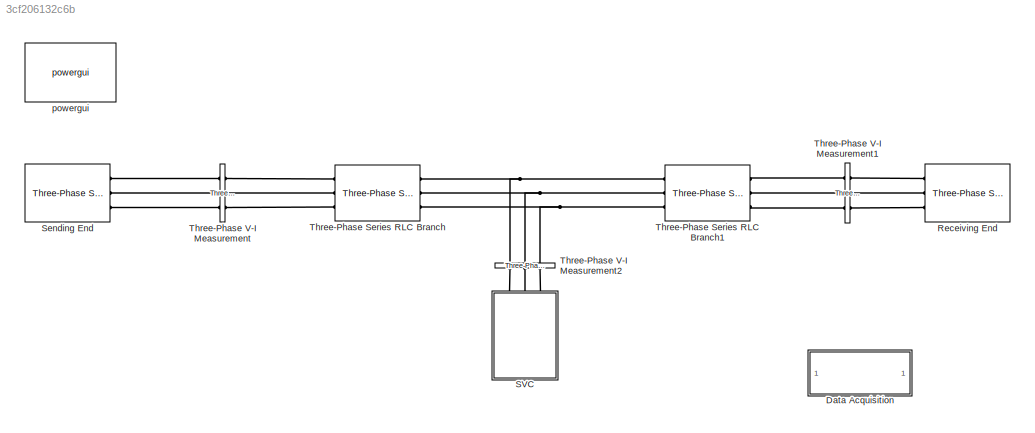
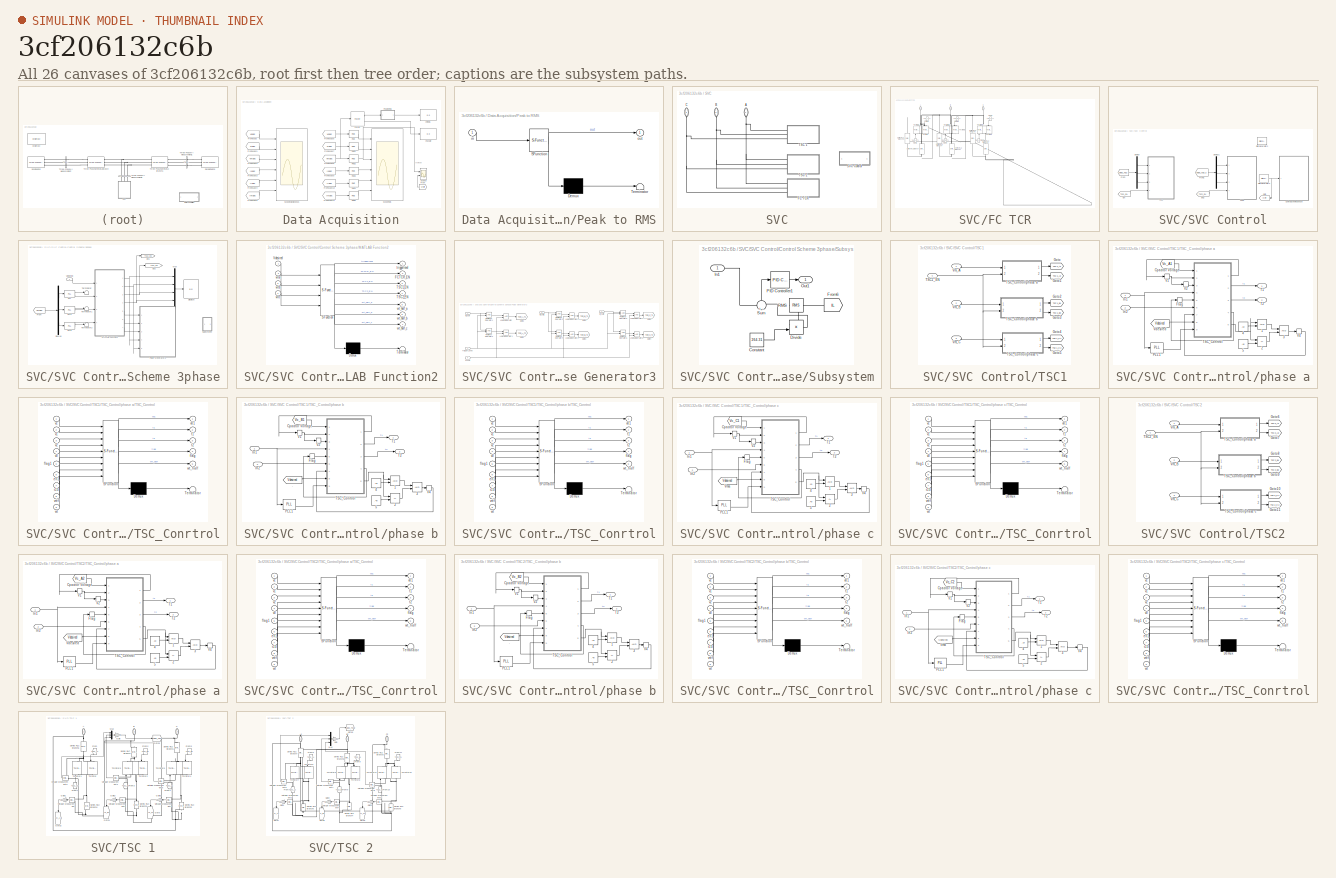
[diagram: thumbnail index - all 26 canvases of the model, root first then tree order]
MODEL slx_3cf206132c6b
KIND model
CONFIG AbsTol = auto
CONFIG FixedStep = auto
CONFIG MaxStep = Ts
CONFIG MinStep = auto
CONFIG RelTol = 1e-3
CONFIG SampleTimeConstraint = Unconstrained
CONFIG Solver = VariableStepAuto
CONFIG SolverMode = Auto
CONFIG SolverName = VariableStepAuto
CONFIG StartTime = 0.0
CONFIG StopTime = 3
BLOCK [SubSystem] Data Acquisition
  Ports = []
  RequestExecContextInheritance = off
  Variant = off
BLOCK [Reference] Data Acquisition/Fourier  REF=powerlib_meascontrol/Measurements/Fourier
  Ports = [1, 2]
  SourceBlock = powerlib_meascontrol/Measurements/Fourier
  SourceType = Fourier
BLOCK [From] Data Acquisition/From
  GotoTag = Vrefff
  TagVisibility = global
BLOCK [From] Data Acquisition/From Vsabc
  GotoTag = Vsabc
  TagVisibility = global
BLOCK [From] Data Acquisition/From Vsabc1
  GotoTag = Vrabc
  TagVisibility = global
BLOCK [From] Data Acquisition/From Vsabc10
  GotoTag = Irabc
  TagVisibility = global
BLOCK [From] Data Acquisition/From Vsabc11
  GotoTag = Imabc
  TagVisibility = global
BLOCK [From] Data Acquisition/From Vsabc2
  GotoTag = Vmabc
  TagVisibility = global
BLOCK [From] Data Acquisition/From Vsabc3
  GotoTag = Isabc
  TagVisibility = global
BLOCK [From] Data Acquisition/From Vsabc4
  GotoTag = Irabc
  TagVisibility = global
BLOCK [From] Data Acquisition/From Vsabc5
  GotoTag = Imabc
  TagVisibility = global
BLOCK [From] Data Acquisition/From Vsabc6
  GotoTag = Vsabc
  TagVisibility = global
BLOCK [From] Data Acquisition/From Vsabc7
  GotoTag = Vrabc
  TagVisibility = global
BLOCK [From] Data Acquisition/From Vsabc8
  GotoTag = Vmabc
  TagVisibility = global
BLOCK [From] Data Acquisition/From Vsabc9
  GotoTag = Isabc
  TagVisibility = global
BLOCK [SubSystem] Data Acquisition/Peak to RMS
  ErrorFcn = Stateflow.Translate.translate
  PermitHierarchicalResolution = ExplicitOnly
  Ports = [1, 1]
  RequestExecContextInheritance = off
  SFBlockType = MATLAB Function
  TreatAsAtomicUnit = on
  Variant = off
BLOCK [Demux] Data Acquisition/Peak to RMS/ Demux 
  Outputs = 1
  Ports = [1, 1]
BLOCK [S-Function] Data Acquisition/Peak to RMS/ SFunction 
  EnableBusSupport = on
  FunctionName = sf_sfun
  PortCounts = [1 2]
  Ports = [1, 2]
  SFunctionDeploymentMode = off
  Tag = Stateflow S-Function SVC 2
BLOCK [Terminator] Data Acquisition/Peak to RMS/ Terminator 
BLOCK [Inport] Data Acquisition/Peak to RMS/in
  IconDisplay = Port number
BLOCK [Outport] Data Acquisition/Peak to RMS/out
  IconDisplay = Port number
BLOCK [Reference] Data Acquisition/RMS  REF=powerlib_meascontrol/Measurements/RMS
  Ports = [1, 1]
  SourceBlock = powerlib_meascontrol/Measurements/RMS
  SourceType = RMS
BLOCK [Reference] Data Acquisition/RMS1  REF=powerlib_meascontrol/Measurements/RMS
  Ports = [1, 1]
  SourceBlock = powerlib_meascontrol/Measurements/RMS
  SourceType = RMS
BLOCK [Reference] Data Acquisition/RMS2  REF=powerlib_meascontrol/Measurements/RMS
  Ports = [1, 1]
  SourceBlock = powerlib_meascontrol/Measurements/RMS
  SourceType = RMS
BLOCK [Reference] Data Acquisition/RMS3  REF=powerlib_meascontrol/Measurements/RMS
  Ports = [1, 1]
  SourceBlock = powerlib_meascontrol/Measurements/RMS
  SourceType = RMS
BLOCK [Reference] Data Acquisition/RMS4  REF=powerlib_meascontrol/Measurements/RMS
  Ports = [1, 1]
  SourceBlock = powerlib_meascontrol/Measurements/RMS
  SourceType = RMS
BLOCK [Reference] Data Acquisition/RMS5  REF=powerlib_meascontrol/Measurements/RMS
  Ports = [1, 1]
  SourceBlock = powerlib_meascontrol/Measurements/RMS
  SourceType = RMS
BLOCK [Scope] Data Acquisition/Scope Instantaneous
  NumInputPorts = 6
  Ports = [6]
  ScopeSpecificationString = Simulink.scopes.TimeScopeBlockCfg('CurrentConfiguration', extmgr.ConfigurationSet(extmgr.Configuration('Core','General UI',true,'FigureColor',[1 1 1]),extmgr.Configuration('Core','Source UI',true),extmgr.Configuration('Sources','WiredSimulink',true),extmgr.Configuration('Visuals','Time Domain',true,'SerializedDisplays',{struct('MinYLimReal','-1.76777','MaxYLimReal','1.76777','YLabelReal','','MinYL...<+7275ch>
BLOCK [Scope] Data Acquisition/Scope RMS
  NumInputPorts = 6
  Ports = [6]
  ScopeSpecificationString = Simulink.scopes.TimeScopeBlockCfg('CurrentConfiguration', extmgr.ConfigurationSet(extmgr.Configuration('Core','General UI',true),extmgr.Configuration('Core','Source UI',true),extmgr.Configuration('Sources','WiredSimulink',true,'DataLoggingVariableName','ScopeData1'),extmgr.Configuration('Visuals','Time Domain',true,'SerializedDisplays',{struct('MinYLimReal','-0.12502','MaxYLimReal','1.12521','YLab...<+5008ch>
BLOCK [Scope] Data Acquisition/Scope3
  NumInputPorts = 2
  Ports = [2]
  ScopeSpecificationString = Simulink.scopes.TimeScopeBlockCfg('CurrentConfiguration', extmgr.ConfigurationSet(extmgr.Configuration('Core','General UI',true,'FigureColor',[1 1 1]),extmgr.Configuration('Core','Source UI',true),extmgr.Configuration('Sources','WiredSimulink',true,'DataLoggingVariableName','ScopeData3'),extmgr.Configuration('Visuals','Time Domain',true,'SerializedDisplays',{struct('MinYLimReal','-0.16746','MaxYLi...<+2175ch>
BLOCK [Display] Data Acquisition/Vm Angle
  Decimation = 3
  Ports = [1]
BLOCK [Display] Data Acquisition/Vm RMS
  Decimation = 3
  Ports = [1]
BLOCK [Reference] Receiving End  REF=powerlib/Electrical
Sources/Three-Phase Source
  Ports = [0, 0, 0, 0, 0, 0, 3]
  SourceBlock = powerlib/Electrical\nSources/Three-Phase Source
  SourceType = Three-Phase Source
BLOCK [SubSystem] SVC
  Ports = [0, 0, 0, 0, 0, 3]
  RequestExecContextInheritance = off
  Variant = off
BLOCK [PMIOPort] SVC/A
  Port = 1
  Side = Left
BLOCK [PMIOPort] SVC/B
  Port = 2
  Side = Left
BLOCK [PMIOPort] SVC/C
  Port = 3
  Side = Left
BLOCK [SubSystem] SVC/FC TCR
  Ports = [0, 0, 0, 0, 0, 3]
  RequestExecContextInheritance = off
  Variant = off
BLOCK [PMIOPort] SVC/FC TCR/A
  Port = 1
  Side = Left
BLOCK [PMIOPort] SVC/FC TCR/B
  Port = 2
  Side = Left
BLOCK [PMIOPort] SVC/FC TCR/C
  Port = 3
  Side = Left
BLOCK [From] SVC/FC TCR/From
  GotoTag = TCR_A_T1
  TagVisibility = global
BLOCK [From] SVC/FC TCR/From1
  GotoTag = TCR_A_T2
  TagVisibility = global
BLOCK [From] SVC/FC TCR/From2
  GotoTag = TCR_B_T1
  TagVisibility = global
BLOCK [From] SVC/FC TCR/From3
  GotoTag = TCR_C_T1
  TagVisibility = global
BLOCK [From] SVC/FC TCR/From4
  GotoTag = TCR_B_T2
  TagVisibility = global
BLOCK [From] SVC/FC TCR/From5
  GotoTag = TCR_C_T2
  TagVisibility = global
BLOCK [Reference] SVC/FC TCR/Series RLC Branch  REF=powerlib/Elements/Series RLC Branch
  Ports = [0, 0, 0, 0, 0, 1, 1]
  SourceBlock = powerlib/Elements/Series RLC Branch
  SourceType = Series RLC Branch
BLOCK [Reference] SVC/FC TCR/Series RLC Branch1  REF=powerlib/Elements/Series RLC Branch
  Ports = [0, 0, 0, 0, 0, 1, 1]
  SourceBlock = powerlib/Elements/Series RLC Branch
  SourceType = Series RLC Branch
BLOCK [Reference] SVC/FC TCR/Series RLC Branch2  REF=powerlib/Elements/Series RLC Branch
  Ports = [0, 0, 0, 0, 0, 1, 1]
  SourceBlock = powerlib/Elements/Series RLC Branch
  SourceType = Series RLC Branch
BLOCK [Reference] SVC/FC TCR/Series RLC Branch3  REF=powerlib/Elements/Series RLC Branch
  Ports = [0, 0, 0, 0, 0, 1, 1]
  SourceBlock = powerlib/Elements/Series RLC Branch
  SourceType = Series RLC Branch
BLOCK [Reference] SVC/FC TCR/Series RLC Branch4  REF=powerlib/Elements/Series RLC Branch
  Ports = [0, 0, 0, 0, 0, 1, 1]
  SourceBlock = powerlib/Elements/Series RLC Branch
  SourceType = Series RLC Branch
BLOCK [Reference] SVC/FC TCR/Series RLC Branch5  REF=powerlib/Elements/Series RLC Branch
  Ports = [0, 0, 0, 0, 0, 1, 1]
  SourceBlock = powerlib/Elements/Series RLC Branch
  SourceType = Series RLC Branch
BLOCK [Reference] SVC/FC TCR/Thyristor  REF=powerlib/Power
Electronics/Thyristor
  Ports = [1, 0, 0, 0, 0, 1, 1]
  SourceBlock = powerlib/Power\nElectronics/Thyristor
  SourceType = Thyristor
BLOCK [Reference] SVC/FC TCR/Thyristor1  REF=powerlib/Power
Electronics/Thyristor
  Ports = [1, 0, 0, 0, 0, 1, 1]
  SourceBlock = powerlib/Power\nElectronics/Thyristor
  SourceType = Thyristor
BLOCK [Reference] SVC/FC TCR/Thyristor2  REF=powerlib/Power
Electronics/Thyristor
  Ports = [1, 0, 0, 0, 0, 1, 1]
  SourceBlock = powerlib/Power\nElectronics/Thyristor
  SourceType = Thyristor
BLOCK [Reference] SVC/FC TCR/Thyristor3  REF=powerlib/Power
Electronics/Thyristor
  Ports = [1, 0, 0, 0, 0, 1, 1]
  SourceBlock = powerlib/Power\nElectronics/Thyristor
  SourceType = Thyristor
BLOCK [Reference] SVC/FC TCR/Thyristor4  REF=powerlib/Power
Electronics/Thyristor
  Ports = [1, 0, 0, 0, 0, 1, 1]
  SourceBlock = powerlib/Power\nElectronics/Thyristor
  SourceType = Thyristor
BLOCK [Reference] SVC/FC TCR/Thyristor5  REF=powerlib/Power
Electronics/Thyristor
  Ports = [1, 0, 0, 0, 0, 1, 1]
  SourceBlock = powerlib/Power\nElectronics/Thyristor
  SourceType = Thyristor
BLOCK [SubSystem] SVC/SVC Control
  Ports = []
  RequestExecContextInheritance = off
  Variant = off
BLOCK [SubSystem] SVC/SVC Control/Control Scheme 3phase
  Ports = [1]
  RequestExecContextInheritance = off
  Variant = off
BLOCK [Demux] SVC/SVC Control/Control Scheme 3phase/Demux
  DisplayOption = bar
  Outputs = 3
  Ports = [1, 3]
BLOCK [Display] SVC/SVC Control/Control Scheme 3phase/Display8
  Decimation = 1
  Ports = [1]
BLOCK [Goto] SVC/SVC Control/Control Scheme 3phase/En1
  GotoTag = TSC2_EN
  TagVisibility = global
BLOCK [Goto] SVC/SVC Control/Control Scheme 3phase/En2
  GotoTag = TSC1_EN
  TagVisibility = global
BLOCK [From] SVC/SVC Control/Control Scheme 3phase/From
  GotoTag = Vmabc
  TagVisibility = global
BLOCK [SubSystem] SVC/SVC Control/Control Scheme 3phase/MATLAB Function2
  ErrorFcn = Stateflow.Translate.translate
  PermitHierarchicalResolution = ExplicitOnly
  Ports = [4, 7]
  RequestExecContextInheritance = off
  SFBlockType = MATLAB Function
  TreatAsAtomicUnit = on
  Variant = off
BLOCK [Demux] SVC/SVC Control/Control Scheme 3phase/MATLAB Function2/ Demux 
  Outputs = 1
  Ports = [1, 1]
BLOCK [S-Function] SVC/SVC Control/Control Scheme 3phase/MATLAB Function2/ SFunction 
  EnableBusSupport = on
  FunctionName = sf_sfun
  PortCounts = [4 8]
  Ports = [4, 8]
  SFunctionDeploymentMode = off
  Tag = Stateflow S-Function SVC 8
BLOCK [Terminator] SVC/SVC Control/Control Scheme 3phase/MATLAB Function2/ Terminator 
BLOCK [Outport] SVC/SVC Control/Control Scheme 3phase/MATLAB Function2/FCTCR_EN
  IconDisplay = Port number
  Port = 2
BLOCK [Outport] SVC/SVC Control/Control Scheme 3phase/MATLAB Function2/TSC1_EN
  IconDisplay = Port number
  Port = 3
BLOCK [Outport] SVC/SVC Control/Control Scheme 3phase/MATLAB Function2/TSC2_EN
  IconDisplay = Port number
  Port = 4
BLOCK [Inport] SVC/SVC Control/Control Scheme 3phase/MATLAB Function2/Vdesired
  IconDisplay = Port number
BLOCK [Outport] SVC/SVC Control/Control Scheme 3phase/MATLAB Function2/triggerlevel
  IconDisplay = Port number
BLOCK [Outport] SVC/SVC Control/Control Scheme 3phase/MATLAB Function2/wt_half_a
  IconDisplay = Port number
  Port = 5
BLOCK [Outport] SVC/SVC Control/Control Scheme 3phase/MATLAB Function2/wt_half_b
  IconDisplay = Port number
  Port = 6
BLOCK [Outport] SVC/SVC Control/Control Scheme 3phase/MATLAB Function2/wt_half_c
  IconDisplay = Port number
  Port = 7
BLOCK [Inport] SVC/SVC Control/Control Scheme 3phase/MATLAB Function2/wta
  IconDisplay = Port number
  Port = 2
BLOCK [Inport] SVC/SVC Control/Control Scheme 3phase/MATLAB Function2/wtb
  IconDisplay = Port number
  Port = 3
BLOCK [Inport] SVC/SVC Control/Control Scheme 3phase/MATLAB Function2/wtc
  IconDisplay = Port number
  Port = 4
BLOCK [Mux] SVC/SVC Control/Control Scheme 3phase/Mux
  DisplayOption = bar
  Ports = [4, 1]
BLOCK [Reference] SVC/SVC Control/Control Scheme 3phase/PLL  REF=powerlib_meascontrol/PLL/PLL
  Ports = [1, 2]
  SourceBlock = powerlib_meascontrol/PLL/PLL
  SourceType = PLL
BLOCK [Reference] SVC/SVC Control/Control Scheme 3phase/PLL1  REF=powerlib_meascontrol/PLL/PLL
  Ports = [1, 2]
  SourceBlock = powerlib_meascontrol/PLL/PLL
  SourceType = PLL
BLOCK [Reference] SVC/SVC Control/Control Scheme 3phase/PLL2  REF=powerlib_meascontrol/PLL/PLL
  Ports = [1, 2]
  SourceBlock = powerlib_meascontrol/PLL/PLL
  SourceType = PLL
BLOCK [SubSystem] SVC/SVC Control/Control Scheme 3phase/Pulse Generator3
  Ports = [5]
  RequestExecContextInheritance = off
  Variant = off
BLOCK [Inport] SVC/SVC Control/Control Scheme 3phase/Pulse Generator3/Enable
  IconDisplay = Port number
  Port = 5
BLOCK [Goto] SVC/SVC Control/Control Scheme 3phase/Pulse Generator3/Goto1
  GotoTag = TCR_A_T2
  TagVisibility = global
BLOCK [Goto] SVC/SVC Control/Control Scheme 3phase/Pulse Generator3/Goto2
  GotoTag = TCR_A_T1
  TagVisibility = global
BLOCK [Goto] SVC/SVC Control/Control Scheme 3phase/Pulse Generator3/Goto3
  GotoTag = TCR_B_T2
  TagVisibility = global
BLOCK [Goto] SVC/SVC Control/Control Scheme 3phase/Pulse Generator3/Goto4
  GotoTag = TCR_C_T2
  TagVisibility = global
BLOCK [Goto] SVC/SVC Control/Control Scheme 3phase/Pulse Generator3/Goto5
  GotoTag = TCR_C_T1
  TagVisibility = global
BLOCK [Goto] SVC/SVC Control/Control Scheme 3phase/Pulse Generator3/Goto9
  GotoTag = TCR_B_T1
  TagVisibility = global
BLOCK [Logic] SVC/SVC Control/Control Scheme 3phase/Pulse Generator3/Logical Operator
  AllPortsSameDT = off
  OutDataTypeStr = boolean
  Ports = [2, 1]
BLOCK [Logic] SVC/SVC Control/Control Scheme 3phase/Pulse Generator3/Logical Operator1
  AllPortsSameDT = off
  OutDataTypeStr = boolean
  Ports = [2, 1]
BLOCK [Logic] SVC/SVC Control/Control Scheme 3phase/Pulse Generator3/Logical Operator2
  AllPortsSameDT = off
  OutDataTypeStr = boolean
  Ports = [2, 1]
BLOCK [Logic] SVC/SVC Control/Control Scheme 3phase/Pulse Generator3/Logical Operator3
  AllPortsSameDT = off
  OutDataTypeStr = boolean
  Ports = [2, 1]
BLOCK [Logic] SVC/SVC Control/Control Scheme 3phase/Pulse Generator3/Logical Operator4
  AllPortsSameDT = off
  OutDataTypeStr = boolean
  Ports = [2, 1]
BLOCK [Logic] SVC/SVC Control/Control Scheme 3phase/Pulse Generator3/Logical Operator5
  AllPortsSameDT = off
  OutDataTypeStr = boolean
  Ports = [2, 1]
BLOCK [RelationalOperator] SVC/SVC Control/Control Scheme 3phase/Pulse Generator3/Relational Operator1
  InputSameDT = off
  OutDataTypeStr = boolean
  Ports = [2, 1]
BLOCK [RelationalOperator] SVC/SVC Control/Control Scheme 3phase/Pulse Generator3/Relational Operator2
  InputSameDT = off
  OutDataTypeStr = boolean
  Ports = [2, 1]
BLOCK [RelationalOperator] SVC/SVC Control/Control Scheme 3phase/Pulse Generator3/Relational Operator3
  InputSameDT = off
  OutDataTypeStr = boolean
  Ports = [2, 1]
BLOCK [RelationalOperator] SVC/SVC Control/Control Scheme 3phase/Pulse Generator3/Relational Operator4
  InputSameDT = off
  OutDataTypeStr = boolean
  Ports = [2, 1]
BLOCK [RelationalOperator] SVC/SVC Control/Control Scheme 3phase/Pulse Generator3/Relational Operator5
  InputSameDT = off
  OutDataTypeStr = boolean
  Ports = [2, 1]
BLOCK [RelationalOperator] SVC/SVC Control/Control Scheme 3phase/Pulse Generator3/Relational Operator6
  InputSameDT = off
  OutDataTypeStr = boolean
  Ports = [2, 1]
BLOCK [Inport] SVC/SVC Control/Control Scheme 3phase/Pulse Generator3/TriggerLevel 
  IconDisplay = Port number
  Port = 4
BLOCK [Inport] SVC/SVC Control/Control Scheme 3phase/Pulse Generator3/wt_half 
  IconDisplay = Port number
BLOCK [Inport] SVC/SVC Control/Control Scheme 3phase/Pulse Generator3/wt_half 1
  IconDisplay = Port number
  Port = 2
BLOCK [Inport] SVC/SVC Control/Control Scheme 3phase/Pulse Generator3/wt_half 2
  IconDisplay = Port number
  Port = 3
BLOCK [SubSystem] SVC/SVC Control/Control Scheme 3phase/Subsystem
  Ports = [1, 1]
  RequestExecContextInheritance = off
  Variant = off
BLOCK [Constant] SVC/SVC Control/Control Scheme 3phase/Subsystem/Constant
  Value = 264.31
BLOCK [Product] SVC/SVC Control/Control Scheme 3phase/Subsystem/Divide
  InputSameDT = off
  Inputs = */
  OutDataTypeStr = Inherit: Inherit via internal rule
  Ports = [2, 1]
  RndMeth = Floor
  SaturateOnIntegerOverflow = off
BLOCK [From] SVC/SVC Control/Control Scheme 3phase/Subsystem/From6
  GotoTag = IL
BLOCK [Inport] SVC/SVC Control/Control Scheme 3phase/Subsystem/In1
  IconDisplay = Port number
BLOCK [Outport] SVC/SVC Control/Control Scheme 3phase/Subsystem/Out1
  IconDisplay = Port number
BLOCK [Reference] SVC/SVC Control/Control Scheme 3phase/Subsystem/PID Controller1  REF=simulink/Continuous/PID Controller
  Ports = [1, 1]
  SourceBlock = simulink/Continuous/PID Controller
  SourceType = PID 1dof
BLOCK [Reference] SVC/SVC Control/Control Scheme 3phase/Subsystem/RMS  REF=powerlib_meascontrol/Measurements/RMS
  Ports = [1, 1]
  SourceBlock = powerlib_meascontrol/Measurements/RMS
  SourceType = RMS
BLOCK [Sum] SVC/SVC Control/Control Scheme 3phase/Subsystem/Sum
  IconShape = round
  InputSameDT = off
  Inputs = +-
  OutDataTypeStr = Inherit: Inherit via internal rule
  Ports = [2, 1]
  SaturateOnIntegerOverflow = off
BLOCK [Terminator] SVC/SVC Control/Control Scheme 3phase/Terminator
BLOCK [Terminator] SVC/SVC Control/Control Scheme 3phase/Terminator1
BLOCK [Terminator] SVC/SVC Control/Control Scheme 3phase/Terminator2
BLOCK [Inport] SVC/SVC Control/Control Scheme 3phase/Vdesired
  IconDisplay = Port number
BLOCK [Demux] SVC/SVC Control/Demux
  DisplayOption = bar
  Outputs = 3
  Ports = [1, 3]
BLOCK [Demux] SVC/SVC Control/Demux1
  DisplayOption = bar
  Outputs = 3
  Ports = [1, 3]
BLOCK [From] SVC/SVC Control/EN
  GotoTag = TSC1_EN
  TagVisibility = global
BLOCK [From] SVC/SVC Control/EN2
  GotoTag = TSC2_EN
  TagVisibility = global
BLOCK [From] SVC/SVC Control/From
  GotoTag = Vabc_TSC
  TagVisibility = global
BLOCK [From] SVC/SVC Control/From1
  GotoTag = Vabc_TSC2
  TagVisibility = global
BLOCK [Goto] SVC/SVC Control/Goto
  GotoTag = Vrefff
  TagVisibility = global
BLOCK [Reference] SVC/SVC Control/Stair Generator2  REF=powerlib_meascontrol/Pulse & Signal
Generators/Stair
Generator
  Ports = [0, 1]
  SourceBlock = powerlib_meascontrol/Pulse & Signal\nGenerators/Stair\nGenerator
  SourceType = Stair Generator
BLOCK [Reference] SVC/SVC Control/Stair Generator3  REF=powerlib_meascontrol/Pulse & Signal
Generators/Stair
Generator
  Ports = [0, 1]
  SourceBlock = powerlib_meascontrol/Pulse & Signal\nGenerators/Stair\nGenerator
  SourceType = Stair Generator
BLOCK [SubSystem] SVC/SVC Control/TSC1
  Ports = [4]
  RequestExecContextInheritance = off
  Variant = off
BLOCK [Goto] SVC/SVC Control/TSC1/Goto
  GotoTag = TSC1_A1
  TagVisibility = global
BLOCK [Goto] SVC/SVC Control/TSC1/Goto1
  GotoTag = TSC1_A2
  TagVisibility = global
BLOCK [Goto] SVC/SVC Control/TSC1/Goto2
  GotoTag = TSC1_B1
  TagVisibility = global
BLOCK [Goto] SVC/SVC Control/TSC1/Goto3
  GotoTag = TSC1_B2
  TagVisibility = global
BLOCK [Goto] SVC/SVC Control/TSC1/Goto4
  GotoTag = TSC1_C1
  TagVisibility = global
BLOCK [Goto] SVC/SVC Control/TSC1/Goto5
  GotoTag = TSC1_C2
  TagVisibility = global
BLOCK [Inport] SVC/SVC Control/TSC1/TSC1_EN
  IconDisplay = Port number
  Port = 4
BLOCK [SubSystem] SVC/SVC Control/TSC1/TSC_Control//phase a
  Ports = [2, 2]
  RequestExecContextInheritance = off
  Variant = off
BLOCK [RelationalOperator] SVC/SVC Control/TSC1/TSC_Control//phase a/1
  InputSameDT = off
  OutDataTypeStr = boolean
  Ports = [2, 1]
BLOCK [RelationalOperator] SVC/SVC Control/TSC1/TSC_Control//phase a/2
  InputSameDT = off
  Operator = <=
  OutDataTypeStr = boolean
  Ports = [2, 1]
BLOCK [Logic] SVC/SVC Control/TSC1/TSC_Control//phase a/3 
  AllPortsSameDT = off
  OutDataTypeStr = boolean
  Ports = [2, 1]
BLOCK [Constant] SVC/SVC Control/TSC1/TSC_Control//phase a/4
  Value = .10
BLOCK [Constant] SVC/SVC Control/TSC1/TSC_Control//phase a/5
  Value = .40
BLOCK [From] SVC/SVC Control/TSC1/TSC_Control//phase a/Cpacitor Voltage
  GotoTag = Vc_A1
  TagVisibility = global
BLOCK [Memory] SVC/SVC Control/TSC1/TSC_Control//phase a/Flag
  InheritSampleTime = on
  LinearizeAsDelay = on
  LinearizeMemory = on
BLOCK [Inport] SVC/SVC Control/TSC1/TSC_Control//phase a/In1
  IconDisplay = Port number
BLOCK [Inport] SVC/SVC Control/TSC1/TSC_Control//phase a/In2
  IconDisplay = Port number
  Port = 2
BLOCK [Reference] SVC/SVC Control/TSC1/TSC_Control//phase a/PLL1  REF=powerlib_meascontrol/PLL/PLL
  Ports = [1, 2]
  SourceBlock = powerlib_meascontrol/PLL/PLL
  SourceType = PLL
BLOCK [Outport] SVC/SVC Control/TSC1/TSC_Control//phase a/T1
  IconDisplay = Port number
BLOCK [Outport] SVC/SVC Control/TSC1/TSC_Control//phase a/T2
  IconDisplay = Port number
  Port = 2
BLOCK [SubSystem] SVC/SVC Control/TSC1/TSC_Control//phase a/TSC_Conrtrol
  ErrorFcn = Stateflow.Translate.translate
  PermitHierarchicalResolution = ExplicitOnly
  Ports = [9, 5]
  RequestExecContextInheritance = off
  SFBlockType = MATLAB Function
  TreatAsAtomicUnit = on
  Variant = off
BLOCK [Demux] SVC/SVC Control/TSC1/TSC_Control//phase a/TSC_Conrtrol/ Demux 
  Outputs = 1
  Ports = [1, 1]
BLOCK [S-Function] SVC/SVC Control/TSC1/TSC_Control//phase a/TSC_Conrtrol/ SFunction 
  EnableBusSupport = on
  FunctionName = sf_sfun
  PortCounts = [9 6]
  Ports = [9, 6]
  SFunctionDeploymentMode = off
  Tag = Stateflow S-Function SVC 7
BLOCK [Terminator] SVC/SVC Control/TSC1/TSC_Control//phase a/TSC_Conrtrol/ Terminator 
BLOCK [Inport] SVC/SVC Control/TSC1/TSC_Control//phase a/TSC_Conrtrol/en1
  IconDisplay = Port number
  Port = 6
BLOCK [Outport] SVC/SVC Control/TSC1/TSC_Control//phase a/TSC_Conrtrol/flag
  IconDisplay = Port number
  Port = 4
BLOCK [Inport] SVC/SVC Control/TSC1/TSC_Control//phase a/TSC_Conrtrol/flag1
  IconDisplay = Port number
  Port = 5
BLOCK [Outport] SVC/SVC Control/TSC1/TSC_Control//phase a/TSC_Conrtrol/t1
  IconDisplay = Port number
  Port = 2
BLOCK [Inport] SVC/SVC Control/TSC1/TSC_Control//phase a/TSC_Conrtrol/t10
  IconDisplay = Port number
  Port = 7
BLOCK [Outport] SVC/SVC Control/TSC1/TSC_Control//phase a/TSC_Conrtrol/t2
  IconDisplay = Port number
  Port = 3
BLOCK [Inport] SVC/SVC Control/TSC1/TSC_Control//phase a/TSC_Conrtrol/v0
  IconDisplay = Port number
  Port = 4
BLOCK [Outport] SVC/SVC Control/TSC1/TSC_Control//phase a/TSC_Conrtrol/v01
  IconDisplay = Port number
BLOCK [Inport] SVC/SVC Control/TSC1/TSC_Control//phase a/TSC_Conrtrol/v1
  IconDisplay = Port number
  Port = 2
BLOCK [Inport] SVC/SVC Control/TSC1/TSC_Control//phase a/TSC_Conrtrol/v2
  IconDisplay = Port number
  Port = 3
BLOCK [Inport] SVC/SVC Control/TSC1/TSC_Control//phase a/TSC_Conrtrol/vc
  IconDisplay = Port number
BLOCK [Inport] SVC/SVC Control/TSC1/TSC_Control//phase a/TSC_Conrtrol/vref
  IconDisplay = Port number
  Port = 8
BLOCK [Inport] SVC/SVC Control/TSC1/TSC_Control//phase a/TSC_Conrtrol/wt
  IconDisplay = Port number
  Port = 9
BLOCK [Outport] SVC/SVC Control/TSC1/TSC_Control//phase a/TSC_Conrtrol/wt_half
  IconDisplay = Port number
  Port = 5
BLOCK [Memory] SVC/SVC Control/TSC1/TSC_Control//phase a/V1
  InheritSampleTime = on
  LinearizeAsDelay = on
  LinearizeMemory = on
BLOCK [Memory] SVC/SVC Control/TSC1/TSC_Control//phase a/V2
  InheritSampleTime = on
  LinearizeAsDelay = on
  LinearizeMemory = on
BLOCK [Memory] SVC/SVC Control/TSC1/TSC_Control//phase a/V4
  InheritSampleTime = on
  LinearizeAsDelay = on
  LinearizeMemory = on
BLOCK [From] SVC/SVC Control/TSC1/TSC_Control//phase a/Vdesired
  GotoTag = Vdesired
BLOCK [SubSystem] SVC/SVC Control/TSC1/TSC_Control//phase b
  Ports = [2, 2]
  RequestExecContextInheritance = off
  Variant = off
BLOCK [From] SVC/SVC Control/TSC1/TSC_Control//phase b/.
  GotoTag = Vdesired
BLOCK [RelationalOperator] SVC/SVC Control/TSC1/TSC_Control//phase b/1
  InputSameDT = off
  OutDataTypeStr = boolean
  Ports = [2, 1]
BLOCK [RelationalOperator] SVC/SVC Control/TSC1/TSC_Control//phase b/2
  InputSameDT = off
  Operator = <=
  OutDataTypeStr = boolean
  Ports = [2, 1]
BLOCK [Logic] SVC/SVC Control/TSC1/TSC_Control//phase b/3 
  AllPortsSameDT = off
  OutDataTypeStr = boolean
  Ports = [2, 1]
BLOCK [Constant] SVC/SVC Control/TSC1/TSC_Control//phase b/4
  Value = .10
BLOCK [Constant] SVC/SVC Control/TSC1/TSC_Control//phase b/5
  Value = .40
BLOCK [From] SVC/SVC Control/TSC1/TSC_Control//phase b/Cpacitor Voltage
  GotoTag = Vc_B1
  TagVisibility = global
BLOCK [Memory] SVC/SVC Control/TSC1/TSC_Control//phase b/Flag
  InheritSampleTime = on
  LinearizeAsDelay = on
  LinearizeMemory = on
BLOCK [Inport] SVC/SVC Control/TSC1/TSC_Control//phase b/In1
  IconDisplay = Port number
BLOCK [Inport] SVC/SVC Control/TSC1/TSC_Control//phase b/In2
  IconDisplay = Port number
  Port = 2
BLOCK [Reference] SVC/SVC Control/TSC1/TSC_Control//phase b/PLL1  REF=powerlib_meascontrol/PLL/PLL
  Ports = [1, 2]
  SourceBlock = powerlib_meascontrol/PLL/PLL
  SourceType = PLL
BLOCK [Outport] SVC/SVC Control/TSC1/TSC_Control//phase b/T1
  IconDisplay = Port number
BLOCK [Outport] SVC/SVC Control/TSC1/TSC_Control//phase b/T2
  IconDisplay = Port number
  Port = 2
BLOCK [SubSystem] SVC/SVC Control/TSC1/TSC_Control//phase b/TSC_Conrtrol
  ErrorFcn = Stateflow.Translate.translate
  PermitHierarchicalResolution = ExplicitOnly
  Ports = [9, 5]
  RequestExecContextInheritance = off
  SFBlockType = MATLAB Function
  TreatAsAtomicUnit = on
  Variant = off
BLOCK [Demux] SVC/SVC Control/TSC1/TSC_Control//phase b/TSC_Conrtrol/ Demux 
  Outputs = 1
  Ports = [1, 1]
BLOCK [S-Function] SVC/SVC Control/TSC1/TSC_Control//phase b/TSC_Conrtrol/ SFunction 
  EnableBusSupport = on
  FunctionName = sf_sfun
  PortCounts = [9 6]
  Ports = [9, 6]
  SFunctionDeploymentMode = off
  Tag = Stateflow S-Function SVC 9
BLOCK [Terminator] SVC/SVC Control/TSC1/TSC_Control//phase b/TSC_Conrtrol/ Terminator 
BLOCK [Inport] SVC/SVC Control/TSC1/TSC_Control//phase b/TSC_Conrtrol/en1
  IconDisplay = Port number
  Port = 6
BLOCK [Outport] SVC/SVC Control/TSC1/TSC_Control//phase b/TSC_Conrtrol/flag
  IconDisplay = Port number
  Port = 4
BLOCK [Inport] SVC/SVC Control/TSC1/TSC_Control//phase b/TSC_Conrtrol/flag1
  IconDisplay = Port number
  Port = 5
BLOCK [Outport] SVC/SVC Control/TSC1/TSC_Control//phase b/TSC_Conrtrol/t1
  IconDisplay = Port number
  Port = 2
BLOCK [Inport] SVC/SVC Control/TSC1/TSC_Control//phase b/TSC_Conrtrol/t10
  IconDisplay = Port number
  Port = 7
BLOCK [Outport] SVC/SVC Control/TSC1/TSC_Control//phase b/TSC_Conrtrol/t2
  IconDisplay = Port number
  Port = 3
BLOCK [Inport] SVC/SVC Control/TSC1/TSC_Control//phase b/TSC_Conrtrol/v0
  IconDisplay = Port number
  Port = 4
BLOCK [Outport] SVC/SVC Control/TSC1/TSC_Control//phase b/TSC_Conrtrol/v01
  IconDisplay = Port number
BLOCK [Inport] SVC/SVC Control/TSC1/TSC_Control//phase b/TSC_Conrtrol/v1
  IconDisplay = Port number
  Port = 2
BLOCK [Inport] SVC/SVC Control/TSC1/TSC_Control//phase b/TSC_Conrtrol/v2
  IconDisplay = Port number
  Port = 3
BLOCK [Inport] SVC/SVC Control/TSC1/TSC_Control//phase b/TSC_Conrtrol/vc
  IconDisplay = Port number
BLOCK [Inport] SVC/SVC Control/TSC1/TSC_Control//phase b/TSC_Conrtrol/vref
  IconDisplay = Port number
  Port = 8
BLOCK [Inport] SVC/SVC Control/TSC1/TSC_Control//phase b/TSC_Conrtrol/wt
  IconDisplay = Port number
  Port = 9
BLOCK [Outport] SVC/SVC Control/TSC1/TSC_Control//phase b/TSC_Conrtrol/wt_half
  IconDisplay = Port number
  Port = 5
BLOCK [Memory] SVC/SVC Control/TSC1/TSC_Control//phase b/V1
  InheritSampleTime = on
  LinearizeAsDelay = on
  LinearizeMemory = on
BLOCK [Memory] SVC/SVC Control/TSC1/TSC_Control//phase b/V2
  InheritSampleTime = on
  LinearizeAsDelay = on
  LinearizeMemory = on
BLOCK [Memory] SVC/SVC Control/TSC1/TSC_Control//phase b/V4
  InheritSampleTime = on
  LinearizeAsDelay = on
  LinearizeMemory = on
BLOCK [SubSystem] SVC/SVC Control/TSC1/TSC_Control//phase c
  Ports = [2, 2]
  RequestExecContextInheritance = off
  Variant = off
BLOCK [RelationalOperator] SVC/SVC Control/TSC1/TSC_Control//phase c/1
  InputSameDT = off
  OutDataTypeStr = boolean
  Ports = [2, 1]
BLOCK [RelationalOperator] SVC/SVC Control/TSC1/TSC_Control//phase c/2
  InputSameDT = off
  Operator = <=
  OutDataTypeStr = boolean
  Ports = [2, 1]
BLOCK [Logic] SVC/SVC Control/TSC1/TSC_Control//phase c/3 
  AllPortsSameDT = off
  OutDataTypeStr = boolean
  Ports = [2, 1]
BLOCK [Constant] SVC/SVC Control/TSC1/TSC_Control//phase c/4
  Value = .10
BLOCK [Constant] SVC/SVC Control/TSC1/TSC_Control//phase c/5
  Value = .40
BLOCK [From] SVC/SVC Control/TSC1/TSC_Control//phase c/Cpacitor Voltage
  GotoTag = Vc_C1
  TagVisibility = global
BLOCK [Memory] SVC/SVC Control/TSC1/TSC_Control//phase c/Flag
  InheritSampleTime = on
  LinearizeAsDelay = on
  LinearizeMemory = on
BLOCK [Inport] SVC/SVC Control/TSC1/TSC_Control//phase c/In1
  IconDisplay = Port number
BLOCK [Inport] SVC/SVC Control/TSC1/TSC_Control//phase c/In2
  IconDisplay = Port number
  Port = 2
BLOCK [Reference] SVC/SVC Control/TSC1/TSC_Control//phase c/PLL1  REF=powerlib_meascontrol/PLL/PLL
  Ports = [1, 2]
  SourceBlock = powerlib_meascontrol/PLL/PLL
  SourceType = PLL
BLOCK [Outport] SVC/SVC Control/TSC1/TSC_Control//phase c/T1
  IconDisplay = Port number
BLOCK [Outport] SVC/SVC Control/TSC1/TSC_Control//phase c/T2
  IconDisplay = Port number
  Port = 2
BLOCK [SubSystem] SVC/SVC Control/TSC1/TSC_Control//phase c/TSC_Conrtrol
  ErrorFcn = Stateflow.Translate.translate
  PermitHierarchicalResolution = ExplicitOnly
  Ports = [9, 5]
  RequestExecContextInheritance = off
  SFBlockType = MATLAB Function
  TreatAsAtomicUnit = on
  Variant = off
BLOCK [Demux] SVC/SVC Control/TSC1/TSC_Control//phase c/TSC_Conrtrol/ Demux 
  Outputs = 1
  Ports = [1, 1]
BLOCK [S-Function] SVC/SVC Control/TSC1/TSC_Control//phase c/TSC_Conrtrol/ SFunction 
  EnableBusSupport = on
  FunctionName = sf_sfun
  PortCounts = [9 6]
  Ports = [9, 6]
  SFunctionDeploymentMode = off
  Tag = Stateflow S-Function SVC 10
BLOCK [Terminator] SVC/SVC Control/TSC1/TSC_Control//phase c/TSC_Conrtrol/ Terminator 
BLOCK [Inport] SVC/SVC Control/TSC1/TSC_Control//phase c/TSC_Conrtrol/en1
  IconDisplay = Port number
  Port = 6
BLOCK [Outport] SVC/SVC Control/TSC1/TSC_Control//phase c/TSC_Conrtrol/flag
  IconDisplay = Port number
  Port = 4
BLOCK [Inport] SVC/SVC Control/TSC1/TSC_Control//phase c/TSC_Conrtrol/flag1
  IconDisplay = Port number
  Port = 5
BLOCK [Outport] SVC/SVC Control/TSC1/TSC_Control//phase c/TSC_Conrtrol/t1
  IconDisplay = Port number
  Port = 2
BLOCK [Inport] SVC/SVC Control/TSC1/TSC_Control//phase c/TSC_Conrtrol/t10
  IconDisplay = Port number
  Port = 7
BLOCK [Outport] SVC/SVC Control/TSC1/TSC_Control//phase c/TSC_Conrtrol/t2
  IconDisplay = Port number
  Port = 3
BLOCK [Inport] SVC/SVC Control/TSC1/TSC_Control//phase c/TSC_Conrtrol/v0
  IconDisplay = Port number
  Port = 4
BLOCK [Outport] SVC/SVC Control/TSC1/TSC_Control//phase c/TSC_Conrtrol/v01
  IconDisplay = Port number
BLOCK [Inport] SVC/SVC Control/TSC1/TSC_Control//phase c/TSC_Conrtrol/v1
  IconDisplay = Port number
  Port = 2
BLOCK [Inport] SVC/SVC Control/TSC1/TSC_Control//phase c/TSC_Conrtrol/v2
  IconDisplay = Port number
  Port = 3
BLOCK [Inport] SVC/SVC Control/TSC1/TSC_Control//phase c/TSC_Conrtrol/vc
  IconDisplay = Port number
BLOCK [Inport] SVC/SVC Control/TSC1/TSC_Control//phase c/TSC_Conrtrol/vref
  IconDisplay = Port number
  Port = 8
BLOCK [Inport] SVC/SVC Control/TSC1/TSC_Control//phase c/TSC_Conrtrol/wt
  IconDisplay = Port number
  Port = 9
BLOCK [Outport] SVC/SVC Control/TSC1/TSC_Control//phase c/TSC_Conrtrol/wt_half
  IconDisplay = Port number
  Port = 5
BLOCK [Memory] SVC/SVC Control/TSC1/TSC_Control//phase c/V1
  InheritSampleTime = on
  LinearizeAsDelay = on
  LinearizeMemory = on
BLOCK [Memory] SVC/SVC Control/TSC1/TSC_Control//phase c/V2
  InheritSampleTime = on
  LinearizeAsDelay = on
  LinearizeMemory = on
BLOCK [Memory] SVC/SVC Control/TSC1/TSC_Control//phase c/V4
  InheritSampleTime = on
  LinearizeAsDelay = on
  LinearizeMemory = on
BLOCK [From] SVC/SVC Control/TSC1/TSC_Control//phase c/Vma
  GotoTag = Vdesired
BLOCK [Inport] SVC/SVC Control/TSC1/Vm_A
  IconDisplay = Port number
BLOCK [Inport] SVC/SVC Control/TSC1/Vm_B
  IconDisplay = Port number
  Port = 2
BLOCK [Inport] SVC/SVC Control/TSC1/Vm_C
  IconDisplay = Port number
  Port = 3
BLOCK [SubSystem] SVC/SVC Control/TSC2
  Ports = [4]
  RequestExecContextInheritance = off
  Variant = off
BLOCK [Goto] SVC/SVC Control/TSC2/Goto10
  GotoTag = TSC2_C1
  TagVisibility = global
BLOCK [Goto] SVC/SVC Control/TSC2/Goto11
  GotoTag = TSC2_C2
  TagVisibility = global
BLOCK [Goto] SVC/SVC Control/TSC2/Goto6
  GotoTag = TSC2_A1
  TagVisibility = global
BLOCK [Goto] SVC/SVC Control/TSC2/Goto7
  GotoTag = TSC2_A2
  TagVisibility = global
BLOCK [Goto] SVC/SVC Control/TSC2/Goto8
  GotoTag = TSC2_B1
  TagVisibility = global
BLOCK [Goto] SVC/SVC Control/TSC2/Goto9
  GotoTag = TSC2_B2
  TagVisibility = global
BLOCK [Inport] SVC/SVC Control/TSC2/TSC2_EN
  IconDisplay = Port number
  Port = 4
BLOCK [SubSystem] SVC/SVC Control/TSC2/TSC_Control//phase a
  Ports = [2, 2]
  RequestExecContextInheritance = off
  Variant = off
BLOCK [RelationalOperator] SVC/SVC Control/TSC2/TSC_Control//phase a/1
  InputSameDT = off
  OutDataTypeStr = boolean
  Ports = [2, 1]
BLOCK [RelationalOperator] SVC/SVC Control/TSC2/TSC_Control//phase a/2
  InputSameDT = off
  Operator = <=
  OutDataTypeStr = boolean
  Ports = [2, 1]
BLOCK [Logic] SVC/SVC Control/TSC2/TSC_Control//phase a/3 
  AllPortsSameDT = off
  OutDataTypeStr = boolean
  Ports = [2, 1]
BLOCK [Constant] SVC/SVC Control/TSC2/TSC_Control//phase a/4
  Value = .10
BLOCK [Constant] SVC/SVC Control/TSC2/TSC_Control//phase a/5
  Value = .40
BLOCK [From] SVC/SVC Control/TSC2/TSC_Control//phase a/Cpacitor Voltage
  GotoTag = Vc_A2
  TagVisibility = global
BLOCK [Memory] SVC/SVC Control/TSC2/TSC_Control//phase a/Flag
  InheritSampleTime = on
  LinearizeAsDelay = on
  LinearizeMemory = on
BLOCK [Inport] SVC/SVC Control/TSC2/TSC_Control//phase a/In1
  IconDisplay = Port number
BLOCK [Inport] SVC/SVC Control/TSC2/TSC_Control//phase a/In2
  IconDisplay = Port number
  Port = 2
BLOCK [Reference] SVC/SVC Control/TSC2/TSC_Control//phase a/PLL1  REF=powerlib_meascontrol/PLL/PLL
  Ports = [1, 2]
  SourceBlock = powerlib_meascontrol/PLL/PLL
  SourceType = PLL
BLOCK [Outport] SVC/SVC Control/TSC2/TSC_Control//phase a/T1
  IconDisplay = Port number
BLOCK [Outport] SVC/SVC Control/TSC2/TSC_Control//phase a/T2
  IconDisplay = Port number
  Port = 2
BLOCK [SubSystem] SVC/SVC Control/TSC2/TSC_Control//phase a/TSC_Conrtrol
  ErrorFcn = Stateflow.Translate.translate
  PermitHierarchicalResolution = ExplicitOnly
  Ports = [9, 5]
  RequestExecContextInheritance = off
  SFBlockType = MATLAB Function
  TreatAsAtomicUnit = on
  Variant = off
BLOCK [Demux] SVC/SVC Control/TSC2/TSC_Control//phase a/TSC_Conrtrol/ Demux 
  Outputs = 1
  Ports = [1, 1]
BLOCK [S-Function] SVC/SVC Control/TSC2/TSC_Control//phase a/TSC_Conrtrol/ SFunction 
  EnableBusSupport = on
  FunctionName = sf_sfun
  PortCounts = [9 6]
  Ports = [9, 6]
  SFunctionDeploymentMode = off
  Tag = Stateflow S-Function SVC 11
BLOCK [Terminator] SVC/SVC Control/TSC2/TSC_Control//phase a/TSC_Conrtrol/ Terminator 
BLOCK [Inport] SVC/SVC Control/TSC2/TSC_Control//phase a/TSC_Conrtrol/en1
  IconDisplay = Port number
  Port = 6
BLOCK [Outport] SVC/SVC Control/TSC2/TSC_Control//phase a/TSC_Conrtrol/flag
  IconDisplay = Port number
  Port = 4
BLOCK [Inport] SVC/SVC Control/TSC2/TSC_Control//phase a/TSC_Conrtrol/flag1
  IconDisplay = Port number
  Port = 5
BLOCK [Outport] SVC/SVC Control/TSC2/TSC_Control//phase a/TSC_Conrtrol/t1
  IconDisplay = Port number
  Port = 2
BLOCK [Inport] SVC/SVC Control/TSC2/TSC_Control//phase a/TSC_Conrtrol/t10
  IconDisplay = Port number
  Port = 7
BLOCK [Outport] SVC/SVC Control/TSC2/TSC_Control//phase a/TSC_Conrtrol/t2
  IconDisplay = Port number
  Port = 3
BLOCK [Inport] SVC/SVC Control/TSC2/TSC_Control//phase a/TSC_Conrtrol/v0
  IconDisplay = Port number
  Port = 4
BLOCK [Outport] SVC/SVC Control/TSC2/TSC_Control//phase a/TSC_Conrtrol/v01
  IconDisplay = Port number
BLOCK [Inport] SVC/SVC Control/TSC2/TSC_Control//phase a/TSC_Conrtrol/v1
  IconDisplay = Port number
  Port = 2
BLOCK [Inport] SVC/SVC Control/TSC2/TSC_Control//phase a/TSC_Conrtrol/v2
  IconDisplay = Port number
  Port = 3
BLOCK [Inport] SVC/SVC Control/TSC2/TSC_Control//phase a/TSC_Conrtrol/vc
  IconDisplay = Port number
BLOCK [Inport] SVC/SVC Control/TSC2/TSC_Control//phase a/TSC_Conrtrol/vref
  IconDisplay = Port number
  Port = 8
BLOCK [Inport] SVC/SVC Control/TSC2/TSC_Control//phase a/TSC_Conrtrol/wt
  IconDisplay = Port number
  Port = 9
BLOCK [Outport] SVC/SVC Control/TSC2/TSC_Control//phase a/TSC_Conrtrol/wt_half
  IconDisplay = Port number
  Port = 5
BLOCK [Memory] SVC/SVC Control/TSC2/TSC_Control//phase a/V1
  InheritSampleTime = on
  LinearizeAsDelay = on
  LinearizeMemory = on
BLOCK [Memory] SVC/SVC Control/TSC2/TSC_Control//phase a/V2
  InheritSampleTime = on
  LinearizeAsDelay = on
  LinearizeMemory = on
BLOCK [Memory] SVC/SVC Control/TSC2/TSC_Control//phase a/V4
  InheritSampleTime = on
  LinearizeAsDelay = on
  LinearizeMemory = on
BLOCK [From] SVC/SVC Control/TSC2/TSC_Control//phase a/Vdesired
  GotoTag = Vdesired
BLOCK [SubSystem] SVC/SVC Control/TSC2/TSC_Control//phase b
  Ports = [2, 2]
  RequestExecContextInheritance = off
  Variant = off
BLOCK [From] SVC/SVC Control/TSC2/TSC_Control//phase b/.
  GotoTag = Vdesired
BLOCK [RelationalOperator] SVC/SVC Control/TSC2/TSC_Control//phase b/1
  InputSameDT = off
  OutDataTypeStr = boolean
  Ports = [2, 1]
BLOCK [RelationalOperator] SVC/SVC Control/TSC2/TSC_Control//phase b/2
  InputSameDT = off
  Operator = <=
  OutDataTypeStr = boolean
  Ports = [2, 1]
BLOCK [Logic] SVC/SVC Control/TSC2/TSC_Control//phase b/3 
  AllPortsSameDT = off
  OutDataTypeStr = boolean
  Ports = [2, 1]
BLOCK [Constant] SVC/SVC Control/TSC2/TSC_Control//phase b/4
  Value = .10
BLOCK [Constant] SVC/SVC Control/TSC2/TSC_Control//phase b/5
  Value = .40
BLOCK [From] SVC/SVC Control/TSC2/TSC_Control//phase b/Cpacitor Voltage
  GotoTag = Vc_B2
  TagVisibility = global
BLOCK [Memory] SVC/SVC Control/TSC2/TSC_Control//phase b/Flag
  InheritSampleTime = on
  LinearizeAsDelay = on
  LinearizeMemory = on
BLOCK [Inport] SVC/SVC Control/TSC2/TSC_Control//phase b/In1
  IconDisplay = Port number
BLOCK [Inport] SVC/SVC Control/TSC2/TSC_Control//phase b/In2
  IconDisplay = Port number
  Port = 2
BLOCK [Reference] SVC/SVC Control/TSC2/TSC_Control//phase b/PLL1  REF=powerlib_meascontrol/PLL/PLL
  Ports = [1, 2]
  SourceBlock = powerlib_meascontrol/PLL/PLL
  SourceType = PLL
BLOCK [Outport] SVC/SVC Control/TSC2/TSC_Control//phase b/T1
  IconDisplay = Port number
BLOCK [Outport] SVC/SVC Control/TSC2/TSC_Control//phase b/T2
  IconDisplay = Port number
  Port = 2
BLOCK [SubSystem] SVC/SVC Control/TSC2/TSC_Control//phase b/TSC_Conrtrol
  ErrorFcn = Stateflow.Translate.translate
  PermitHierarchicalResolution = ExplicitOnly
  Ports = [9, 5]
  RequestExecContextInheritance = off
  SFBlockType = MATLAB Function
  TreatAsAtomicUnit = on
  Variant = off
BLOCK [Demux] SVC/SVC Control/TSC2/TSC_Control//phase b/TSC_Conrtrol/ Demux 
  Outputs = 1
  Ports = [1, 1]
BLOCK [S-Function] SVC/SVC Control/TSC2/TSC_Control//phase b/TSC_Conrtrol/ SFunction 
  EnableBusSupport = on
  FunctionName = sf_sfun
  PortCounts = [9 6]
  Ports = [9, 6]
  SFunctionDeploymentMode = off
  Tag = Stateflow S-Function SVC 12
BLOCK [Terminator] SVC/SVC Control/TSC2/TSC_Control//phase b/TSC_Conrtrol/ Terminator 
BLOCK [Inport] SVC/SVC Control/TSC2/TSC_Control//phase b/TSC_Conrtrol/en1
  IconDisplay = Port number
  Port = 6
BLOCK [Outport] SVC/SVC Control/TSC2/TSC_Control//phase b/TSC_Conrtrol/flag
  IconDisplay = Port number
  Port = 4
BLOCK [Inport] SVC/SVC Control/TSC2/TSC_Control//phase b/TSC_Conrtrol/flag1
  IconDisplay = Port number
  Port = 5
BLOCK [Outport] SVC/SVC Control/TSC2/TSC_Control//phase b/TSC_Conrtrol/t1
  IconDisplay = Port number
  Port = 2
BLOCK [Inport] SVC/SVC Control/TSC2/TSC_Control//phase b/TSC_Conrtrol/t10
  IconDisplay = Port number
  Port = 7
BLOCK [Outport] SVC/SVC Control/TSC2/TSC_Control//phase b/TSC_Conrtrol/t2
  IconDisplay = Port number
  Port = 3
BLOCK [Inport] SVC/SVC Control/TSC2/TSC_Control//phase b/TSC_Conrtrol/v0
  IconDisplay = Port number
  Port = 4
BLOCK [Outport] SVC/SVC Control/TSC2/TSC_Control//phase b/TSC_Conrtrol/v01
  IconDisplay = Port number
BLOCK [Inport] SVC/SVC Control/TSC2/TSC_Control//phase b/TSC_Conrtrol/v1
  IconDisplay = Port number
  Port = 2
BLOCK [Inport] SVC/SVC Control/TSC2/TSC_Control//phase b/TSC_Conrtrol/v2
  IconDisplay = Port number
  Port = 3
BLOCK [Inport] SVC/SVC Control/TSC2/TSC_Control//phase b/TSC_Conrtrol/vc
  IconDisplay = Port number
BLOCK [Inport] SVC/SVC Control/TSC2/TSC_Control//phase b/TSC_Conrtrol/vref
  IconDisplay = Port number
  Port = 8
BLOCK [Inport] SVC/SVC Control/TSC2/TSC_Control//phase b/TSC_Conrtrol/wt
  IconDisplay = Port number
  Port = 9
BLOCK [Outport] SVC/SVC Control/TSC2/TSC_Control//phase b/TSC_Conrtrol/wt_half
  IconDisplay = Port number
  Port = 5
BLOCK [Memory] SVC/SVC Control/TSC2/TSC_Control//phase b/V1
  InheritSampleTime = on
  LinearizeAsDelay = on
  LinearizeMemory = on
BLOCK [Memory] SVC/SVC Control/TSC2/TSC_Control//phase b/V2
  InheritSampleTime = on
  LinearizeAsDelay = on
  LinearizeMemory = on
BLOCK [Memory] SVC/SVC Control/TSC2/TSC_Control//phase b/V4
  InheritSampleTime = on
  LinearizeAsDelay = on
  LinearizeMemory = on
BLOCK [SubSystem] SVC/SVC Control/TSC2/TSC_Control//phase c
  Ports = [2, 2]
  RequestExecContextInheritance = off
  Variant = off
BLOCK [RelationalOperator] SVC/SVC Control/TSC2/TSC_Control//phase c/1
  InputSameDT = off
  OutDataTypeStr = boolean
  Ports = [2, 1]
BLOCK [RelationalOperator] SVC/SVC Control/TSC2/TSC_Control//phase c/2
  InputSameDT = off
  Operator = <=
  OutDataTypeStr = boolean
  Ports = [2, 1]
BLOCK [Logic] SVC/SVC Control/TSC2/TSC_Control//phase c/3 
  AllPortsSameDT = off
  OutDataTypeStr = boolean
  Ports = [2, 1]
BLOCK [Constant] SVC/SVC Control/TSC2/TSC_Control//phase c/4
  Value = .10
BLOCK [Constant] SVC/SVC Control/TSC2/TSC_Control//phase c/5
  Value = .40
BLOCK [From] SVC/SVC Control/TSC2/TSC_Control//phase c/Cpacitor Voltage
  GotoTag = Vc_C2
  TagVisibility = global
BLOCK [Memory] SVC/SVC Control/TSC2/TSC_Control//phase c/Flag
  InheritSampleTime = on
  LinearizeAsDelay = on
  LinearizeMemory = on
BLOCK [Inport] SVC/SVC Control/TSC2/TSC_Control//phase c/In1
  IconDisplay = Port number
BLOCK [Inport] SVC/SVC Control/TSC2/TSC_Control//phase c/In2
  IconDisplay = Port number
  Port = 2
BLOCK [Reference] SVC/SVC Control/TSC2/TSC_Control//phase c/PLL1  REF=powerlib_meascontrol/PLL/PLL
  Ports = [1, 2]
  SourceBlock = powerlib_meascontrol/PLL/PLL
  SourceType = PLL
BLOCK [Outport] SVC/SVC Control/TSC2/TSC_Control//phase c/T1
  IconDisplay = Port number
BLOCK [Outport] SVC/SVC Control/TSC2/TSC_Control//phase c/T2
  IconDisplay = Port number
  Port = 2
BLOCK [SubSystem] SVC/SVC Control/TSC2/TSC_Control//phase c/TSC_Conrtrol
  ErrorFcn = Stateflow.Translate.translate
  PermitHierarchicalResolution = ExplicitOnly
  Ports = [9, 5]
  RequestExecContextInheritance = off
  SFBlockType = MATLAB Function
  TreatAsAtomicUnit = on
  Variant = off
BLOCK [Demux] SVC/SVC Control/TSC2/TSC_Control//phase c/TSC_Conrtrol/ Demux 
  Outputs = 1
  Ports = [1, 1]
BLOCK [S-Function] SVC/SVC Control/TSC2/TSC_Control//phase c/TSC_Conrtrol/ SFunction 
  EnableBusSupport = on
  FunctionName = sf_sfun
  PortCounts = [9 6]
  Ports = [9, 6]
  SFunctionDeploymentMode = off
  Tag = Stateflow S-Function SVC 13
BLOCK [Terminator] SVC/SVC Control/TSC2/TSC_Control//phase c/TSC_Conrtrol/ Terminator 
BLOCK [Inport] SVC/SVC Control/TSC2/TSC_Control//phase c/TSC_Conrtrol/en1
  IconDisplay = Port number
  Port = 6
BLOCK [Outport] SVC/SVC Control/TSC2/TSC_Control//phase c/TSC_Conrtrol/flag
  IconDisplay = Port number
  Port = 4
BLOCK [Inport] SVC/SVC Control/TSC2/TSC_Control//phase c/TSC_Conrtrol/flag1
  IconDisplay = Port number
  Port = 5
BLOCK [Outport] SVC/SVC Control/TSC2/TSC_Control//phase c/TSC_Conrtrol/t1
  IconDisplay = Port number
  Port = 2
BLOCK [Inport] SVC/SVC Control/TSC2/TSC_Control//phase c/TSC_Conrtrol/t10
  IconDisplay = Port number
  Port = 7
BLOCK [Outport] SVC/SVC Control/TSC2/TSC_Control//phase c/TSC_Conrtrol/t2
  IconDisplay = Port number
  Port = 3
BLOCK [Inport] SVC/SVC Control/TSC2/TSC_Control//phase c/TSC_Conrtrol/v0
  IconDisplay = Port number
  Port = 4
BLOCK [Outport] SVC/SVC Control/TSC2/TSC_Control//phase c/TSC_Conrtrol/v01
  IconDisplay = Port number
BLOCK [Inport] SVC/SVC Control/TSC2/TSC_Control//phase c/TSC_Conrtrol/v1
  IconDisplay = Port number
  Port = 2
BLOCK [Inport] SVC/SVC Control/TSC2/TSC_Control//phase c/TSC_Conrtrol/v2
  IconDisplay = Port number
  Port = 3
BLOCK [Inport] SVC/SVC Control/TSC2/TSC_Control//phase c/TSC_Conrtrol/vc
  IconDisplay = Port number
BLOCK [Inport] SVC/SVC Control/TSC2/TSC_Control//phase c/TSC_Conrtrol/vref
  IconDisplay = Port number
  Port = 8
BLOCK [Inport] SVC/SVC Control/TSC2/TSC_Control//phase c/TSC_Conrtrol/wt
  IconDisplay = Port number
  Port = 9
BLOCK [Outport] SVC/SVC Control/TSC2/TSC_Control//phase c/TSC_Conrtrol/wt_half
  IconDisplay = Port number
  Port = 5
BLOCK [Memory] SVC/SVC Control/TSC2/TSC_Control//phase c/V1
  InheritSampleTime = on
  LinearizeAsDelay = on
  LinearizeMemory = on
BLOCK [Memory] SVC/SVC Control/TSC2/TSC_Control//phase c/V2
  InheritSampleTime = on
  LinearizeAsDelay = on
  LinearizeMemory = on
BLOCK [Memory] SVC/SVC Control/TSC2/TSC_Control//phase c/V4
  InheritSampleTime = on
  LinearizeAsDelay = on
  LinearizeMemory = on
BLOCK [From] SVC/SVC Control/TSC2/TSC_Control//phase c/Vma
  GotoTag = Vdesired
BLOCK [Inport] SVC/SVC Control/TSC2/Vm_A
  IconDisplay = Port number
BLOCK [Inport] SVC/SVC Control/TSC2/Vm_B
  IconDisplay = Port number
  Port = 2
BLOCK [Inport] SVC/SVC Control/TSC2/Vm_C
  IconDisplay = Port number
  Port = 3
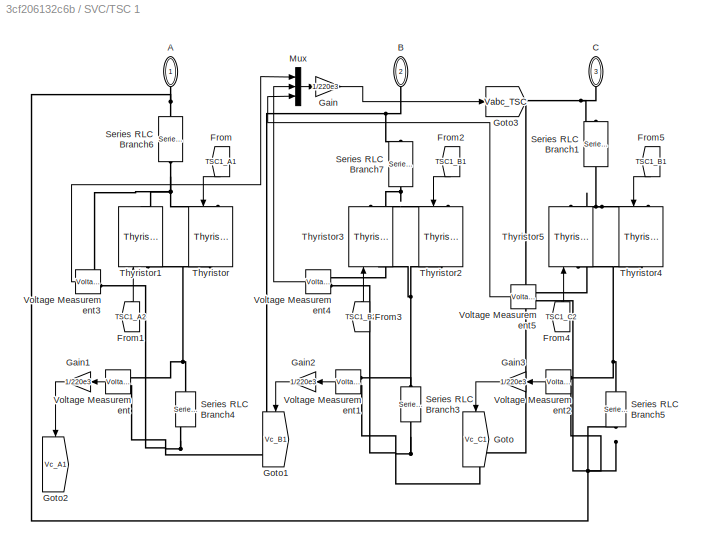
BLOCK [SubSystem] SVC/TSC 1
  Ports = [0, 0, 0, 0, 0, 3]
  RequestExecContextInheritance = off
  Variant = off
BLOCK [PMIOPort] SVC/TSC 1/A
  Port = 1
  Side = Left
BLOCK [PMIOPort] SVC/TSC 1/B
  Port = 2
  Side = Left
BLOCK [PMIOPort] SVC/TSC 1/C
  Port = 3
  Side = Left
BLOCK [From] SVC/TSC 1/From
  GotoTag = TSC1_A1
  TagVisibility = global
BLOCK [From] SVC/TSC 1/From1
  GotoTag = TSC1_A2
  TagVisibility = global
BLOCK [From] SVC/TSC 1/From2
  GotoTag = TSC1_B1
  TagVisibility = global
BLOCK [From] SVC/TSC 1/From3
  GotoTag = TSC1_B2
  TagVisibility = global
BLOCK [From] SVC/TSC 1/From4
  GotoTag = TSC1_C2
  TagVisibility = global
BLOCK [From] SVC/TSC 1/From5
  GotoTag = TSC1_B1
  TagVisibility = global
BLOCK [Gain] SVC/TSC 1/Gain
  Gain = 1/220e3
  OutDataTypeStr = Inherit: Inherit via internal rule
  ParamDataTypeStr = Inherit: Inherit via internal rule
  SaturateOnIntegerOverflow = off
BLOCK [Gain] SVC/TSC 1/Gain1
  Gain = 1/220e3
  OutDataTypeStr = Inherit: Inherit via internal rule
  ParamDataTypeStr = Inherit: Inherit via internal rule
  SaturateOnIntegerOverflow = off
BLOCK [Gain] SVC/TSC 1/Gain2
  Gain = 1/220e3
  OutDataTypeStr = Inherit: Inherit via internal rule
  ParamDataTypeStr = Inherit: Inherit via internal rule
  SaturateOnIntegerOverflow = off
BLOCK [Gain] SVC/TSC 1/Gain3
  Gain = 1/220e3
  OutDataTypeStr = Inherit: Inherit via internal rule
  ParamDataTypeStr = Inherit: Inherit via internal rule
  SaturateOnIntegerOverflow = off
BLOCK [Goto] SVC/TSC 1/Goto
  GotoTag = Vc_C1
  TagVisibility = global
BLOCK [Goto] SVC/TSC 1/Goto1
  GotoTag = Vc_B1
  TagVisibility = global
BLOCK [Goto] SVC/TSC 1/Goto2
  GotoTag = Vc_A1
  TagVisibility = global
BLOCK [Goto] SVC/TSC 1/Goto3
  GotoTag = Vabc_TSC
  TagVisibility = global
BLOCK [Mux] SVC/TSC 1/Mux
  DisplayOption = bar
  Inputs = 3
  Ports = [3, 1]
BLOCK [Reference] SVC/TSC 1/Series RLC Branch1  REF=powerlib/Elements/Series RLC Branch
  Ports = [0, 0, 0, 0, 0, 1, 1]
  SourceBlock = powerlib/Elements/Series RLC Branch
  SourceType = Series RLC Branch
BLOCK [Reference] SVC/TSC 1/Series RLC Branch3  REF=powerlib/Elements/Series RLC Branch
  Ports = [0, 0, 0, 0, 0, 1, 1]
  SourceBlock = powerlib/Elements/Series RLC Branch
  SourceType = Series RLC Branch
BLOCK [Reference] SVC/TSC 1/Series RLC Branch4  REF=powerlib/Elements/Series RLC Branch
  Ports = [0, 0, 0, 0, 0, 1, 1]
  SourceBlock = powerlib/Elements/Series RLC Branch
  SourceType = Series RLC Branch
BLOCK [Reference] SVC/TSC 1/Series RLC Branch5  REF=powerlib/Elements/Series RLC Branch
  Ports = [0, 0, 0, 0, 0, 1, 1]
  SourceBlock = powerlib/Elements/Series RLC Branch
  SourceType = Series RLC Branch
BLOCK [Reference] SVC/TSC 1/Series RLC Branch6  REF=powerlib/Elements/Series RLC Branch
  Ports = [0, 0, 0, 0, 0, 1, 1]
  SourceBlock = powerlib/Elements/Series RLC Branch
  SourceType = Series RLC Branch
BLOCK [Reference] SVC/TSC 1/Series RLC Branch7  REF=powerlib/Elements/Series RLC Branch
  Ports = [0, 0, 0, 0, 0, 1, 1]
  SourceBlock = powerlib/Elements/Series RLC Branch
  SourceType = Series RLC Branch
BLOCK [Reference] SVC/TSC 1/Thyristor  REF=powerlib/Power
Electronics/Thyristor
  Ports = [1, 0, 0, 0, 0, 1, 1]
  SourceBlock = powerlib/Power\nElectronics/Thyristor
  SourceType = Thyristor
BLOCK [Reference] SVC/TSC 1/Thyristor1  REF=powerlib/Power
Electronics/Thyristor
  Ports = [1, 0, 0, 0, 0, 1, 1]
  SourceBlock = powerlib/Power\nElectronics/Thyristor
  SourceType = Thyristor
BLOCK [Reference] SVC/TSC 1/Thyristor2  REF=powerlib/Power
Electronics/Thyristor
  Ports = [1, 0, 0, 0, 0, 1, 1]
  SourceBlock = powerlib/Power\nElectronics/Thyristor
  SourceType = Thyristor
BLOCK [Reference] SVC/TSC 1/Thyristor3  REF=powerlib/Power
Electronics/Thyristor
  Ports = [1, 0, 0, 0, 0, 1, 1]
  SourceBlock = powerlib/Power\nElectronics/Thyristor
  SourceType = Thyristor
BLOCK [Reference] SVC/TSC 1/Thyristor4  REF=powerlib/Power
Electronics/Thyristor
  Ports = [1, 0, 0, 0, 0, 1, 1]
  SourceBlock = powerlib/Power\nElectronics/Thyristor
  SourceType = Thyristor
BLOCK [Reference] SVC/TSC 1/Thyristor5  REF=powerlib/Power
Electronics/Thyristor
  Ports = [1, 0, 0, 0, 0, 1, 1]
  SourceBlock = powerlib/Power\nElectronics/Thyristor
  SourceType = Thyristor
BLOCK [Reference] SVC/TSC 1/Voltage Measurement  REF=powerlib/Measurements/Voltage Measurement
  Ports = [0, 1, 0, 0, 0, 2]
  SourceBlock = powerlib/Measurements/Voltage Measurement
  SourceType = Voltage Measurement
  UserDataPersistent = on
BLOCK [Reference] SVC/TSC 1/Voltage Measurement1  REF=powerlib/Measurements/Voltage Measurement
  Ports = [0, 1, 0, 0, 0, 2]
  SourceBlock = powerlib/Measurements/Voltage Measurement
  SourceType = Voltage Measurement
  UserDataPersistent = on
BLOCK [Reference] SVC/TSC 1/Voltage Measurement2  REF=powerlib/Measurements/Voltage Measurement
  Ports = [0, 1, 0, 0, 0, 2]
  SourceBlock = powerlib/Measurements/Voltage Measurement
  SourceType = Voltage Measurement
  UserDataPersistent = on
BLOCK [Reference] SVC/TSC 1/Voltage Measurement3  REF=powerlib/Measurements/Voltage Measurement
  Ports = [0, 1, 0, 0, 0, 2]
  SourceBlock = powerlib/Measurements/Voltage Measurement
  SourceType = Voltage Measurement
  UserDataPersistent = on
BLOCK [Reference] SVC/TSC 1/Voltage Measurement4  REF=powerlib/Measurements/Voltage Measurement
  Ports = [0, 1, 0, 0, 0, 2]
  SourceBlock = powerlib/Measurements/Voltage Measurement
  SourceType = Voltage Measurement
  UserDataPersistent = on
BLOCK [Reference] SVC/TSC 1/Voltage Measurement5  REF=powerlib/Measurements/Voltage Measurement
  Ports = [0, 1, 0, 0, 0, 2]
  SourceBlock = powerlib/Measurements/Voltage Measurement
  SourceType = Voltage Measurement
  UserDataPersistent = on
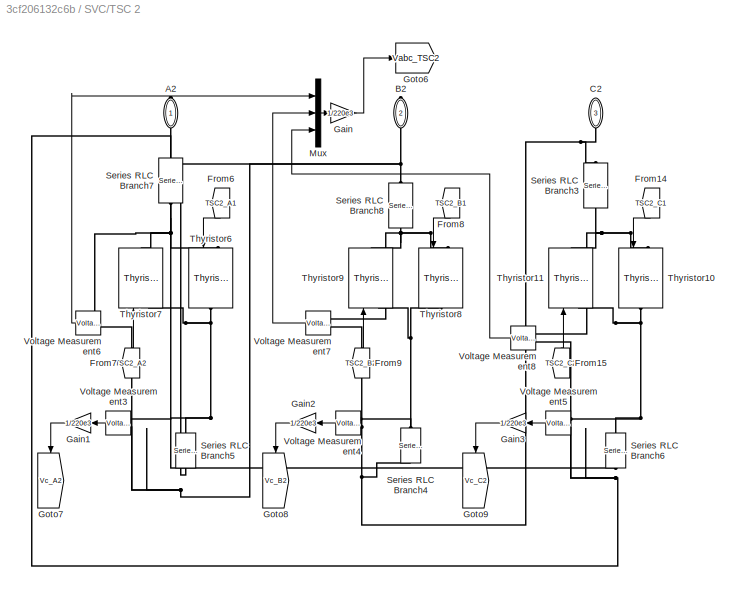
BLOCK [SubSystem] SVC/TSC 2
  Ports = [0, 0, 0, 0, 0, 0, 3]
  RequestExecContextInheritance = off
  Variant = off
BLOCK [PMIOPort] SVC/TSC 2/A2
  Port = 1
  Side = Right
BLOCK [PMIOPort] SVC/TSC 2/B2
  Port = 2
  Side = Right
BLOCK [PMIOPort] SVC/TSC 2/C2
  Port = 3
  Side = Right
BLOCK [From] SVC/TSC 2/From14
  GotoTag = TSC2_C1
  TagVisibility = global
BLOCK [From] SVC/TSC 2/From15
  GotoTag = TSC2_C2
  TagVisibility = global
BLOCK [From] SVC/TSC 2/From6
  GotoTag = TSC2_A1
  TagVisibility = global
BLOCK [From] SVC/TSC 2/From7
  GotoTag = TSC2_A2
  TagVisibility = global
BLOCK [From] SVC/TSC 2/From8
  GotoTag = TSC2_B1
  TagVisibility = global
BLOCK [From] SVC/TSC 2/From9
  GotoTag = TSC2_B2
  TagVisibility = global
BLOCK [Gain] SVC/TSC 2/Gain
  Gain = 1/220e3
  OutDataTypeStr = Inherit: Inherit via internal rule
  ParamDataTypeStr = Inherit: Inherit via internal rule
  SaturateOnIntegerOverflow = off
BLOCK [Gain] SVC/TSC 2/Gain1
  Gain = 1/220e3
  OutDataTypeStr = Inherit: Inherit via internal rule
  ParamDataTypeStr = Inherit: Inherit via internal rule
  SaturateOnIntegerOverflow = off
BLOCK [Gain] SVC/TSC 2/Gain2
  Gain = 1/220e3
  OutDataTypeStr = Inherit: Inherit via internal rule
  ParamDataTypeStr = Inherit: Inherit via internal rule
  SaturateOnIntegerOverflow = off
BLOCK [Gain] SVC/TSC 2/Gain3
  Gain = 1/220e3
  OutDataTypeStr = Inherit: Inherit via internal rule
  ParamDataTypeStr = Inherit: Inherit via internal rule
  SaturateOnIntegerOverflow = off
BLOCK [Goto] SVC/TSC 2/Goto6
  GotoTag = Vabc_TSC2
  TagVisibility = global
BLOCK [Goto] SVC/TSC 2/Goto7
  GotoTag = Vc_A2
  TagVisibility = global
BLOCK [Goto] SVC/TSC 2/Goto8
  GotoTag = Vc_B2
  TagVisibility = global
BLOCK [Goto] SVC/TSC 2/Goto9
  GotoTag = Vc_C2
  TagVisibility = global
BLOCK [Mux] SVC/TSC 2/Mux
  DisplayOption = bar
  Inputs = 3
  Ports = [3, 1]
BLOCK [Reference] SVC/TSC 2/Series RLC Branch3  REF=powerlib/Elements/Series RLC Branch
  Ports = [0, 0, 0, 0, 0, 1, 1]
  SourceBlock = powerlib/Elements/Series RLC Branch
  SourceType = Series RLC Branch
BLOCK [Reference] SVC/TSC 2/Series RLC Branch4  REF=powerlib/Elements/Series RLC Branch
  Ports = [0, 0, 0, 0, 0, 1, 1]
  SourceBlock = powerlib/Elements/Series RLC Branch
  SourceType = Series RLC Branch
BLOCK [Reference] SVC/TSC 2/Series RLC Branch5  REF=powerlib/Elements/Series RLC Branch
  Ports = [0, 0, 0, 0, 0, 1, 1]
  SourceBlock = powerlib/Elements/Series RLC Branch
  SourceType = Series RLC Branch
BLOCK [Reference] SVC/TSC 2/Series RLC Branch6  REF=powerlib/Elements/Series RLC Branch
  Ports = [0, 0, 0, 0, 0, 1, 1]
  SourceBlock = powerlib/Elements/Series RLC Branch
  SourceType = Series RLC Branch
BLOCK [Reference] SVC/TSC 2/Series RLC Branch7  REF=powerlib/Elements/Series RLC Branch
  Ports = [0, 0, 0, 0, 0, 1, 1]
  SourceBlock = powerlib/Elements/Series RLC Branch
  SourceType = Series RLC Branch
BLOCK [Reference] SVC/TSC 2/Series RLC Branch8  REF=powerlib/Elements/Series RLC Branch
  Ports = [0, 0, 0, 0, 0, 1, 1]
  SourceBlock = powerlib/Elements/Series RLC Branch
  SourceType = Series RLC Branch
BLOCK [Reference] SVC/TSC 2/Thyristor10  REF=powerlib/Power
Electronics/Thyristor
  Ports = [1, 0, 0, 0, 0, 1, 1]
  SourceBlock = powerlib/Power\nElectronics/Thyristor
  SourceType = Thyristor
BLOCK [Reference] SVC/TSC 2/Thyristor11  REF=powerlib/Power
Electronics/Thyristor
  Ports = [1, 0, 0, 0, 0, 1, 1]
  SourceBlock = powerlib/Power\nElectronics/Thyristor
  SourceType = Thyristor
BLOCK [Reference] SVC/TSC 2/Thyristor6  REF=powerlib/Power
Electronics/Thyristor
  Ports = [1, 0, 0, 0, 0, 1, 1]
  SourceBlock = powerlib/Power\nElectronics/Thyristor
  SourceType = Thyristor
BLOCK [Reference] SVC/TSC 2/Thyristor7  REF=powerlib/Power
Electronics/Thyristor
  Ports = [1, 0, 0, 0, 0, 1, 1]
  SourceBlock = powerlib/Power\nElectronics/Thyristor
  SourceType = Thyristor
BLOCK [Reference] SVC/TSC 2/Thyristor8  REF=powerlib/Power
Electronics/Thyristor
  Ports = [1, 0, 0, 0, 0, 1, 1]
  SourceBlock = powerlib/Power\nElectronics/Thyristor
  SourceType = Thyristor
BLOCK [Reference] SVC/TSC 2/Thyristor9  REF=powerlib/Power
Electronics/Thyristor
  Ports = [1, 0, 0, 0, 0, 1, 1]
  SourceBlock = powerlib/Power\nElectronics/Thyristor
  SourceType = Thyristor
BLOCK [Reference] SVC/TSC 2/Voltage Measurement3  REF=powerlib/Measurements/Voltage Measurement
  Ports = [0, 1, 0, 0, 0, 2]
  SourceBlock = powerlib/Measurements/Voltage Measurement
  SourceType = Voltage Measurement
  UserDataPersistent = on
BLOCK [Reference] SVC/TSC 2/Voltage Measurement4  REF=powerlib/Measurements/Voltage Measurement
  Ports = [0, 1, 0, 0, 0, 2]
  SourceBlock = powerlib/Measurements/Voltage Measurement
  SourceType = Voltage Measurement
  UserDataPersistent = on
BLOCK [Reference] SVC/TSC 2/Voltage Measurement5  REF=powerlib/Measurements/Voltage Measurement
  Ports = [0, 1, 0, 0, 0, 2]
  SourceBlock = powerlib/Measurements/Voltage Measurement
  SourceType = Voltage Measurement
  UserDataPersistent = on
BLOCK [Reference] SVC/TSC 2/Voltage Measurement6  REF=powerlib/Measurements/Voltage Measurement
  Ports = [0, 1, 0, 0, 0, 2]
  SourceBlock = powerlib/Measurements/Voltage Measurement
  SourceType = Voltage Measurement
  UserDataPersistent = on
BLOCK [Reference] SVC/TSC 2/Voltage Measurement7  REF=powerlib/Measurements/Voltage Measurement
  Ports = [0, 1, 0, 0, 0, 2]
  SourceBlock = powerlib/Measurements/Voltage Measurement
  SourceType = Voltage Measurement
  UserDataPersistent = on
BLOCK [Reference] SVC/TSC 2/Voltage Measurement8  REF=powerlib/Measurements/Voltage Measurement
  Ports = [0, 1, 0, 0, 0, 2]
  SourceBlock = powerlib/Measurements/Voltage Measurement
  SourceType = Voltage Measurement
  UserDataPersistent = on
BLOCK [Reference] Sending End  REF=powerlib/Electrical
Sources/Three-Phase Source
  Ports = [0, 0, 0, 0, 0, 0, 3]
  SourceBlock = powerlib/Electrical\nSources/Three-Phase Source
  SourceType = Three-Phase Source
BLOCK [Reference] Three-Phase Series RLC Branch  REF=powerlib/Elements/Three-Phase
Series RLC Branch
  AttributesFormatString = \n
  Ports = [0, 0, 0, 0, 0, 3, 3]
  SourceBlock = powerlib/Elements/Three-Phase\nSeries RLC Branch
  SourceType = Three-Phase Series RLC Branch
BLOCK [Reference] Three-Phase Series RLC Branch1  REF=powerlib/Elements/Three-Phase
Series RLC Branch
  AttributesFormatString = \n
  Ports = [0, 0, 0, 0, 0, 3, 3]
  SourceBlock = powerlib/Elements/Three-Phase\nSeries RLC Branch
  SourceType = Three-Phase Series RLC Branch
BLOCK [Reference] Three-Phase V-I Measurement  REF=powerlib/Measurements/Three-Phase
V-I Measurement
  Ports = [0, 0, 0, 0, 0, 3, 3]
  SourceBlock = powerlib/Measurements/Three-Phase\nV-I Measurement
  SourceType = Three-Phase VI Measurement
BLOCK [Reference] Three-Phase V-I Measurement1  REF=powerlib/Measurements/Three-Phase
V-I Measurement
  Ports = [0, 0, 0, 0, 0, 3, 3]
  SourceBlock = powerlib/Measurements/Three-Phase\nV-I Measurement
  SourceType = Three-Phase VI Measurement
BLOCK [Reference] Three-Phase V-I Measurement2  REF=powerlib/Measurements/Three-Phase
V-I Measurement
  Ports = [0, 0, 0, 0, 0, 3, 3]
  SourceBlock = powerlib/Measurements/Three-Phase\nV-I Measurement
  SourceType = Three-Phase VI Measurement
BLOCK [Reference] powergui  REF=powerlib/powergui
  Ports = []
  Priority = 1
  SourceBlock = powerlib/powergui
  SourceType = PSB option menu block
  UserDataPersistent = on
ANNOTATION Data Acquisition: Vref vs |V|
LINE Data Acquisition/Fourier:1 -> Data Acquisition/Peak to RMS:1
LINE Data Acquisition/Fourier:2 -> Data Acquisition/Vm Angle:1
LINE Data Acquisition/From Vsabc10:1 -> Data Acquisition/RMS4:1
LINE Data Acquisition/From Vsabc11:1 -> Data Acquisition/RMS5:1
LINE Data Acquisition/From Vsabc1:1 -> Data Acquisition/Scope Instantaneous:2
LINE Data Acquisition/From Vsabc2:1 -> Data Acquisition/Scope Instantaneous:3
LINE Data Acquisition/From Vsabc3:1 -> Data Acquisition/Scope Instantaneous:4
LINE Data Acquisition/From Vsabc4:1 -> Data Acquisition/Scope Instantaneous:5
LINE Data Acquisition/From Vsabc5:1 -> Data Acquisition/Scope Instantaneous:6
LINE Data Acquisition/From Vsabc6:1 -> Data Acquisition/RMS:1
LINE Data Acquisition/From Vsabc7:1 -> Data Acquisition/RMS1:1
NET Data Acquisition/From Vsabc8:1 -> Data Acquisition/Fourier:1, Data Acquisition/RMS2:1
LINE Data Acquisition/From Vsabc9:1 -> Data Acquisition/RMS3:1
LINE Data Acquisition/From Vsabc:1 -> Data Acquisition/Scope Instantaneous:1
LINE Data Acquisition/From:1 -> Data Acquisition/Scope3:2
LINE Data Acquisition/Peak to RMS:1 -> Data Acquisition/Vm RMS:1
LINE Data Acquisition/RMS1:1 -> Data Acquisition/Scope RMS:2
NET Data Acquisition/RMS2:1 -> Data Acquisition/Scope RMS:3, Data Acquisition/Scope3:1
LINE Data Acquisition/RMS3:1 -> Data Acquisition/Scope RMS:4
LINE Data Acquisition/RMS4:1 -> Data Acquisition/Scope RMS:5
LINE Data Acquisition/RMS5:1 -> Data Acquisition/Scope RMS:6
LINE Data Acquisition/RMS:1 -> Data Acquisition/Scope RMS:1
LINE SVC/FC TCR/From1:1 -> SVC/FC TCR/Thyristor1:1
LINE SVC/FC TCR/From2:1 -> SVC/FC TCR/Thyristor2:1
LINE SVC/FC TCR/From3:1 -> SVC/FC TCR/Thyristor4:1
LINE SVC/FC TCR/From4:1 -> SVC/FC TCR/Thyristor3:1
LINE SVC/FC TCR/From5:1 -> SVC/FC TCR/Thyristor5:1
LINE SVC/FC TCR/From:1 -> SVC/FC TCR/Thyristor:1
LINE SVC/SVC Control/Control Scheme 3phase/Demux:1 -> SVC/SVC Control/Control Scheme 3phase/PLL:1
LINE SVC/SVC Control/Control Scheme 3phase/Demux:2 -> SVC/SVC Control/Control Scheme 3phase/PLL1:1
LINE SVC/SVC Control/Control Scheme 3phase/Demux:3 -> SVC/SVC Control/Control Scheme 3phase/PLL2:1
LINE SVC/SVC Control/Control Scheme 3phase/From:1 -> SVC/SVC Control/Control Scheme 3phase/Demux:1
NET SVC/SVC Control/Control Scheme 3phase/MATLAB Function2:1 -> SVC/SVC Control/Control Scheme 3phase/Mux:1, SVC/SVC Control/Control Scheme 3phase/Pulse Generator3:4
NET SVC/SVC Control/Control Scheme 3phase/MATLAB Function2:2 -> SVC/SVC Control/Control Scheme 3phase/Mux:2, SVC/SVC Control/Control Scheme 3phase/Pulse Generator3:5
NET SVC/SVC Control/Control Scheme 3phase/MATLAB Function2:3 -> SVC/SVC Control/Control Scheme 3phase/En2:1, SVC/SVC Control/Control Scheme 3phase/Mux:3
NET SVC/SVC Control/Control Scheme 3phase/MATLAB Function2:4 -> SVC/SVC Control/Control Scheme 3phase/En1:1, SVC/SVC Control/Control Scheme 3phase/Mux:4
LINE SVC/SVC Control/Control Scheme 3phase/MATLAB Function2:5 -> SVC/SVC Control/Control Scheme 3phase/Pulse Generator3:1
LINE SVC/SVC Control/Control Scheme 3phase/MATLAB Function2:6 -> SVC/SVC Control/Control Scheme 3phase/Pulse Generator3:2
LINE SVC/SVC Control/Control Scheme 3phase/MATLAB Function2:7 -> SVC/SVC Control/Control Scheme 3phase/Pulse Generator3:3
LINE SVC/SVC Control/Control Scheme 3phase/Mux:1 -> SVC/SVC Control/Control Scheme 3phase/Display8:1
LINE SVC/SVC Control/Control Scheme 3phase/PLL1:1 -> SVC/SVC Control/Control Scheme 3phase/Terminator1:1
LINE SVC/SVC Control/Control Scheme 3phase/PLL1:2 -> SVC/SVC Control/Control Scheme 3phase/MATLAB Function2:3
LINE SVC/SVC Control/Control Scheme 3phase/PLL2:1 -> SVC/SVC Control/Control Scheme 3phase/Terminator2:1
LINE SVC/SVC Control/Control Scheme 3phase/PLL2:2 -> SVC/SVC Control/Control Scheme 3phase/MATLAB Function2:4
LINE SVC/SVC Control/Control Scheme 3phase/PLL:1 -> SVC/SVC Control/Control Scheme 3phase/Terminator:1
LINE SVC/SVC Control/Control Scheme 3phase/PLL:2 -> SVC/SVC Control/Control Scheme 3phase/MATLAB Function2:2
NET SVC/SVC Control/Control Scheme 3phase/Pulse Generator3/Enable:1 -> SVC/SVC Control/Control Scheme 3phase/Pulse Generator3/Logical Operator1:2, SVC/SVC Control/Control Scheme 3phase/Pulse Generator3/Logical Operator2:2, SVC/SVC Control/Control Scheme 3phase/Pulse Generator3/Logical Operator3:2, SVC/SVC Control/Control Scheme 3phase/Pulse Generator3/Logical Operator4:2, SVC/SVC Control/Control Scheme 3phase/Pulse Generator3/Logical Operator5:2, SVC/SVC Control/Control Scheme 3phase/Pulse Generator3/Logical Operator:2
LINE SVC/SVC Control/Control Scheme 3phase/Pulse Generator3/Logical Operator1:1 -> SVC/SVC Control/Control Scheme 3phase/Pulse Generator3/Goto1:1
LINE SVC/SVC Control/Control Scheme 3phase/Pulse Generator3/Logical Operator2:1 -> SVC/SVC Control/Control Scheme 3phase/Pulse Generator3/Goto9:1
LINE SVC/SVC Control/Control Scheme 3phase/Pulse Generator3/Logical Operator3:1 -> SVC/SVC Control/Control Scheme 3phase/Pulse Generator3/Goto3:1
LINE SVC/SVC Control/Control Scheme 3phase/Pulse Generator3/Logical Operator4:1 -> SVC/SVC Control/Control Scheme 3phase/Pulse Generator3/Goto5:1
LINE SVC/SVC Control/Control Scheme 3phase/Pulse Generator3/Logical Operator5:1 -> SVC/SVC Control/Control Scheme 3phase/Pulse Generator3/Goto4:1
LINE SVC/SVC Control/Control Scheme 3phase/Pulse Generator3/Logical Operator:1 -> SVC/SVC Control/Control Scheme 3phase/Pulse Generator3/Goto2:1
LINE SVC/SVC Control/Control Scheme 3phase/Pulse Generator3/Relational Operator1:1 -> SVC/SVC Control/Control Scheme 3phase/Pulse Generator3/Logical Operator:1
LINE SVC/SVC Control/Control Scheme 3phase/Pulse Generator3/Relational Operator2:1 -> SVC/SVC Control/Control Scheme 3phase/Pulse Generator3/Logical Operator1:1
LINE SVC/SVC Control/Control Scheme 3phase/Pulse Generator3/Relational Operator3:1 -> SVC/SVC Control/Control Scheme 3phase/Pulse Generator3/Logical Operator2:1
LINE SVC/SVC Control/Control Scheme 3phase/Pulse Generator3/Relational Operator4:1 -> SVC/SVC Control/Control Scheme 3phase/Pulse Generator3/Logical Operator3:1
LINE SVC/SVC Control/Control Scheme 3phase/Pulse Generator3/Relational Operator5:1 -> SVC/SVC Control/Control Scheme 3phase/Pulse Generator3/Logical Operator4:1
LINE SVC/SVC Control/Control Scheme 3phase/Pulse Generator3/Relational Operator6:1 -> SVC/SVC Control/Control Scheme 3phase/Pulse Generator3/Logical Operator5:1
NET SVC/SVC Control/Control Scheme 3phase/Pulse Generator3/TriggerLevel :1 -> SVC/SVC Control/Control Scheme 3phase/Pulse Generator3/Relational Operator1:2, SVC/SVC Control/Control Scheme 3phase/Pulse Generator3/Relational Operator2:2, SVC/SVC Control/Control Scheme 3phase/Pulse Generator3/Relational Operator3:2, SVC/SVC Control/Control Scheme 3phase/Pulse Generator3/Relational Operator4:2, SVC/SVC Control/Control Scheme 3phase/Pulse Generator3/Relational Operator5:2, SVC/SVC Control/Control Scheme 3phase/Pulse Generator3/Relational Operator6:2
NET SVC/SVC Control/Control Scheme 3phase/Pulse Generator3/wt_half 1:1 -> SVC/SVC Control/Control Scheme 3phase/Pulse Generator3/Relational Operator3:1, SVC/SVC Control/Control Scheme 3phase/Pulse Generator3/Relational Operator4:1
NET SVC/SVC Control/Control Scheme 3phase/Pulse Generator3/wt_half 2:1 -> SVC/SVC Control/Control Scheme 3phase/Pulse Generator3/Relational Operator5:1, SVC/SVC Control/Control Scheme 3phase/Pulse Generator3/Relational Operator6:1
NET SVC/SVC Control/Control Scheme 3phase/Pulse Generator3/wt_half :1 -> SVC/SVC Control/Control Scheme 3phase/Pulse Generator3/Relational Operator1:1, SVC/SVC Control/Control Scheme 3phase/Pulse Generator3/Relational Operator2:1
LINE SVC/SVC Control/Control Scheme 3phase/Subsystem/Constant:1 -> SVC/SVC Control/Control Scheme 3phase/Subsystem/Divide:2
LINE SVC/SVC Control/Control Scheme 3phase/Subsystem/Divide:1 -> SVC/SVC Control/Control Scheme 3phase/Subsystem/Sum:2
LINE SVC/SVC Control/Control Scheme 3phase/Subsystem/From6:1 -> SVC/SVC Control/Control Scheme 3phase/Subsystem/RMS:1
LINE SVC/SVC Control/Control Scheme 3phase/Subsystem/In1:1 -> SVC/SVC Control/Control Scheme 3phase/Subsystem/Sum:1
LINE SVC/SVC Control/Control Scheme 3phase/Subsystem/PID Controller1:1 -> SVC/SVC Control/Control Scheme 3phase/Subsystem/Out1:1
LINE SVC/SVC Control/Control Scheme 3phase/Subsystem/RMS:1 -> SVC/SVC Control/Control Scheme 3phase/Subsystem/Divide:1
LINE SVC/SVC Control/Control Scheme 3phase/Subsystem/Sum:1 -> SVC/SVC Control/Control Scheme 3phase/Subsystem/PID Controller1:1
LINE SVC/SVC Control/Control Scheme 3phase/Vdesired:1 -> SVC/SVC Control/Control Scheme 3phase/MATLAB Function2:1
LINE SVC/SVC Control/Demux1:1 -> SVC/SVC Control/TSC2:1
LINE SVC/SVC Control/Demux1:2 -> SVC/SVC Control/TSC2:2
LINE SVC/SVC Control/Demux1:3 -> SVC/SVC Control/TSC2:3
LINE SVC/SVC Control/Demux:1 -> SVC/SVC Control/TSC1:1
LINE SVC/SVC Control/Demux:2 -> SVC/SVC Control/TSC1:2
LINE SVC/SVC Control/Demux:3 -> SVC/SVC Control/TSC1:3
LINE SVC/SVC Control/EN2:1 -> SVC/SVC Control/TSC2:4
LINE SVC/SVC Control/EN:1 -> SVC/SVC Control/TSC1:4
LINE SVC/SVC Control/From1:1 -> SVC/SVC Control/Demux1:1
LINE SVC/SVC Control/From:1 -> SVC/SVC Control/Demux:1
NET SVC/SVC Control/Stair Generator3:1 -> SVC/SVC Control/Control Scheme 3phase:1, SVC/SVC Control/Goto:1
NET SVC/SVC Control/TSC1/TSC1_EN:1 -> SVC/SVC Control/TSC1/TSC_Control//phase a:2, SVC/SVC Control/TSC1/TSC_Control//phase b:2, SVC/SVC Control/TSC1/TSC_Control//phase c:2
LINE SVC/SVC Control/TSC1/TSC_Control//phase a/1:1 -> SVC/SVC Control/TSC1/TSC_Control//phase a/3 :1
LINE SVC/SVC Control/TSC1/TSC_Control//phase a/2:1 -> SVC/SVC Control/TSC1/TSC_Control//phase a/3 :2
LINE SVC/SVC Control/TSC1/TSC_Control//phase a/3 :1 -> SVC/SVC Control/TSC1/TSC_Control//phase a/V4:1
LINE SVC/SVC Control/TSC1/TSC_Control//phase a/4:1 -> SVC/SVC Control/TSC1/TSC_Control//phase a/1:2
LINE SVC/SVC Control/TSC1/TSC_Control//phase a/5:1 -> SVC/SVC Control/TSC1/TSC_Control//phase a/2:2
LINE SVC/SVC Control/TSC1/TSC_Control//phase a/Cpacitor Voltage:1 -> SVC/SVC Control/TSC1/TSC_Control//phase a/TSC_Conrtrol:1
LINE SVC/SVC Control/TSC1/TSC_Control//phase a/Flag:1 -> SVC/SVC Control/TSC1/TSC_Control//phase a/TSC_Conrtrol:5
NET SVC/SVC Control/TSC1/TSC_Control//phase a/In1:1 -> SVC/SVC Control/TSC1/TSC_Control//phase a/PLL1:1, SVC/SVC Control/TSC1/TSC_Control//phase a/TSC_Conrtrol:4
LINE SVC/SVC Control/TSC1/TSC_Control//phase a/In2:1 -> SVC/SVC Control/TSC1/TSC_Control//phase a/TSC_Conrtrol:6
LINE SVC/SVC Control/TSC1/TSC_Control//phase a/PLL1:2 -> SVC/SVC Control/TSC1/TSC_Control//phase a/TSC_Conrtrol:9
LINE SVC/SVC Control/TSC1/TSC_Control//phase a/TSC_Conrtrol:1 -> SVC/SVC Control/TSC1/TSC_Control//phase a/V1:1
LINE SVC/SVC Control/TSC1/TSC_Control//phase a/TSC_Conrtrol:2 -> SVC/SVC Control/TSC1/TSC_Control//phase a/T1:1
LINE SVC/SVC Control/TSC1/TSC_Control//phase a/TSC_Conrtrol:3 -> SVC/SVC Control/TSC1/TSC_Control//phase a/T2:1
LINE SVC/SVC Control/TSC1/TSC_Control//phase a/TSC_Conrtrol:4 -> SVC/SVC Control/TSC1/TSC_Control//phase a/Flag:1
NET SVC/SVC Control/TSC1/TSC_Control//phase a/TSC_Conrtrol:5 -> SVC/SVC Control/TSC1/TSC_Control//phase a/1:1, SVC/SVC Control/TSC1/TSC_Control//phase a/2:1
NET SVC/SVC Control/TSC1/TSC_Control//phase a/V1:1 -> SVC/SVC Control/TSC1/TSC_Control//phase a/TSC_Conrtrol:2, SVC/SVC Control/TSC1/TSC_Control//phase a/V2:1
LINE SVC/SVC Control/TSC1/TSC_Control//phase a/V2:1 -> SVC/SVC Control/TSC1/TSC_Control//phase a/TSC_Conrtrol:3
LINE SVC/SVC Control/TSC1/TSC_Control//phase a/V4:1 -> SVC/SVC Control/TSC1/TSC_Control//phase a/TSC_Conrtrol:7
LINE SVC/SVC Control/TSC1/TSC_Control//phase a/Vdesired:1 -> SVC/SVC Control/TSC1/TSC_Control//phase a/TSC_Conrtrol:8
LINE SVC/SVC Control/TSC1/TSC_Control//phase a:1 -> SVC/SVC Control/TSC1/Goto:1
LINE SVC/SVC Control/TSC1/TSC_Control//phase a:2 -> SVC/SVC Control/TSC1/Goto1:1
LINE SVC/SVC Control/TSC1/TSC_Control//phase b/.:1 -> SVC/SVC Control/TSC1/TSC_Control//phase b/TSC_Conrtrol:8
LINE SVC/SVC Control/TSC1/TSC_Control//phase b/1:1 -> SVC/SVC Control/TSC1/TSC_Control//phase b/3 :1
LINE SVC/SVC Control/TSC1/TSC_Control//phase b/2:1 -> SVC/SVC Control/TSC1/TSC_Control//phase b/3 :2
LINE SVC/SVC Control/TSC1/TSC_Control//phase b/3 :1 -> SVC/SVC Control/TSC1/TSC_Control//phase b/V4:1
LINE SVC/SVC Control/TSC1/TSC_Control//phase b/4:1 -> SVC/SVC Control/TSC1/TSC_Control//phase b/1:2
LINE SVC/SVC Control/TSC1/TSC_Control//phase b/5:1 -> SVC/SVC Control/TSC1/TSC_Control//phase b/2:2
LINE SVC/SVC Control/TSC1/TSC_Control//phase b/Cpacitor Voltage:1 -> SVC/SVC Control/TSC1/TSC_Control//phase b/TSC_Conrtrol:1
LINE SVC/SVC Control/TSC1/TSC_Control//phase b/Flag:1 -> SVC/SVC Control/TSC1/TSC_Control//phase b/TSC_Conrtrol:5
NET SVC/SVC Control/TSC1/TSC_Control//phase b/In1:1 -> SVC/SVC Control/TSC1/TSC_Control//phase b/PLL1:1, SVC/SVC Control/TSC1/TSC_Control//phase b/TSC_Conrtrol:4
LINE SVC/SVC Control/TSC1/TSC_Control//phase b/In2:1 -> SVC/SVC Control/TSC1/TSC_Control//phase b/TSC_Conrtrol:6
LINE SVC/SVC Control/TSC1/TSC_Control//phase b/PLL1:2 -> SVC/SVC Control/TSC1/TSC_Control//phase b/TSC_Conrtrol:9
LINE SVC/SVC Control/TSC1/TSC_Control//phase b/TSC_Conrtrol:1 -> SVC/SVC Control/TSC1/TSC_Control//phase b/V1:1
LINE SVC/SVC Control/TSC1/TSC_Control//phase b/TSC_Conrtrol:2 -> SVC/SVC Control/TSC1/TSC_Control//phase b/T1:1
LINE SVC/SVC Control/TSC1/TSC_Control//phase b/TSC_Conrtrol:3 -> SVC/SVC Control/TSC1/TSC_Control//phase b/T2:1
LINE SVC/SVC Control/TSC1/TSC_Control//phase b/TSC_Conrtrol:4 -> SVC/SVC Control/TSC1/TSC_Control//phase b/Flag:1
NET SVC/SVC Control/TSC1/TSC_Control//phase b/TSC_Conrtrol:5 -> SVC/SVC Control/TSC1/TSC_Control//phase b/1:1, SVC/SVC Control/TSC1/TSC_Control//phase b/2:1
NET SVC/SVC Control/TSC1/TSC_Control//phase b/V1:1 -> SVC/SVC Control/TSC1/TSC_Control//phase b/TSC_Conrtrol:2, SVC/SVC Control/TSC1/TSC_Control//phase b/V2:1
LINE SVC/SVC Control/TSC1/TSC_Control//phase b/V2:1 -> SVC/SVC Control/TSC1/TSC_Control//phase b/TSC_Conrtrol:3
LINE SVC/SVC Control/TSC1/TSC_Control//phase b/V4:1 -> SVC/SVC Control/TSC1/TSC_Control//phase b/TSC_Conrtrol:7
LINE SVC/SVC Control/TSC1/TSC_Control//phase b:1 -> SVC/SVC Control/TSC1/Goto2:1
LINE SVC/SVC Control/TSC1/TSC_Control//phase b:2 -> SVC/SVC Control/TSC1/Goto3:1
LINE SVC/SVC Control/TSC1/TSC_Control//phase c/1:1 -> SVC/SVC Control/TSC1/TSC_Control//phase c/3 :1
LINE SVC/SVC Control/TSC1/TSC_Control//phase c/2:1 -> SVC/SVC Control/TSC1/TSC_Control//phase c/3 :2
LINE SVC/SVC Control/TSC1/TSC_Control//phase c/3 :1 -> SVC/SVC Control/TSC1/TSC_Control//phase c/V4:1
LINE SVC/SVC Control/TSC1/TSC_Control//phase c/4:1 -> SVC/SVC Control/TSC1/TSC_Control//phase c/1:2
LINE SVC/SVC Control/TSC1/TSC_Control//phase c/5:1 -> SVC/SVC Control/TSC1/TSC_Control//phase c/2:2
LINE SVC/SVC Control/TSC1/TSC_Control//phase c/Cpacitor Voltage:1 -> SVC/SVC Control/TSC1/TSC_Control//phase c/TSC_Conrtrol:1
LINE SVC/SVC Control/TSC1/TSC_Control//phase c/Flag:1 -> SVC/SVC Control/TSC1/TSC_Control//phase c/TSC_Conrtrol:5
NET SVC/SVC Control/TSC1/TSC_Control//phase c/In1:1 -> SVC/SVC Control/TSC1/TSC_Control//phase c/PLL1:1, SVC/SVC Control/TSC1/TSC_Control//phase c/TSC_Conrtrol:4
LINE SVC/SVC Control/TSC1/TSC_Control//phase c/In2:1 -> SVC/SVC Control/TSC1/TSC_Control//phase c/TSC_Conrtrol:6
LINE SVC/SVC Control/TSC1/TSC_Control//phase c/PLL1:2 -> SVC/SVC Control/TSC1/TSC_Control//phase c/TSC_Conrtrol:9
LINE SVC/SVC Control/TSC1/TSC_Control//phase c/TSC_Conrtrol:1 -> SVC/SVC Control/TSC1/TSC_Control//phase c/V1:1
LINE SVC/SVC Control/TSC1/TSC_Control//phase c/TSC_Conrtrol:2 -> SVC/SVC Control/TSC1/TSC_Control//phase c/T1:1
LINE SVC/SVC Control/TSC1/TSC_Control//phase c/TSC_Conrtrol:3 -> SVC/SVC Control/TSC1/TSC_Control//phase c/T2:1
LINE SVC/SVC Control/TSC1/TSC_Control//phase c/TSC_Conrtrol:4 -> SVC/SVC Control/TSC1/TSC_Control//phase c/Flag:1
NET SVC/SVC Control/TSC1/TSC_Control//phase c/TSC_Conrtrol:5 -> SVC/SVC Control/TSC1/TSC_Control//phase c/1:1, SVC/SVC Control/TSC1/TSC_Control//phase c/2:1
NET SVC/SVC Control/TSC1/TSC_Control//phase c/V1:1 -> SVC/SVC Control/TSC1/TSC_Control//phase c/TSC_Conrtrol:2, SVC/SVC Control/TSC1/TSC_Control//phase c/V2:1
LINE SVC/SVC Control/TSC1/TSC_Control//phase c/V2:1 -> SVC/SVC Control/TSC1/TSC_Control//phase c/TSC_Conrtrol:3
LINE SVC/SVC Control/TSC1/TSC_Control//phase c/V4:1 -> SVC/SVC Control/TSC1/TSC_Control//phase c/TSC_Conrtrol:7
LINE SVC/SVC Control/TSC1/TSC_Control//phase c/Vma:1 -> SVC/SVC Control/TSC1/TSC_Control//phase c/TSC_Conrtrol:8
LINE SVC/SVC Control/TSC1/TSC_Control//phase c:1 -> SVC/SVC Control/TSC1/Goto4:1
LINE SVC/SVC Control/TSC1/TSC_Control//phase c:2 -> SVC/SVC Control/TSC1/Goto5:1
LINE SVC/SVC Control/TSC1/Vm_A:1 -> SVC/SVC Control/TSC1/TSC_Control//phase a:1
LINE SVC/SVC Control/TSC1/Vm_B:1 -> SVC/SVC Control/TSC1/TSC_Control//phase b:1
LINE SVC/SVC Control/TSC1/Vm_C:1 -> SVC/SVC Control/TSC1/TSC_Control//phase c:1
NET SVC/SVC Control/TSC2/TSC2_EN:1 -> SVC/SVC Control/TSC2/TSC_Control//phase a:2, SVC/SVC Control/TSC2/TSC_Control//phase b:2, SVC/SVC Control/TSC2/TSC_Control//phase c:2
LINE SVC/SVC Control/TSC2/TSC_Control//phase a/1:1 -> SVC/SVC Control/TSC2/TSC_Control//phase a/3 :1
LINE SVC/SVC Control/TSC2/TSC_Control//phase a/2:1 -> SVC/SVC Control/TSC2/TSC_Control//phase a/3 :2
LINE SVC/SVC Control/TSC2/TSC_Control//phase a/3 :1 -> SVC/SVC Control/TSC2/TSC_Control//phase a/V4:1
LINE SVC/SVC Control/TSC2/TSC_Control//phase a/4:1 -> SVC/SVC Control/TSC2/TSC_Control//phase a/1:2
LINE SVC/SVC Control/TSC2/TSC_Control//phase a/5:1 -> SVC/SVC Control/TSC2/TSC_Control//phase a/2:2
LINE SVC/SVC Control/TSC2/TSC_Control//phase a/Cpacitor Voltage:1 -> SVC/SVC Control/TSC2/TSC_Control//phase a/TSC_Conrtrol:1
LINE SVC/SVC Control/TSC2/TSC_Control//phase a/Flag:1 -> SVC/SVC Control/TSC2/TSC_Control//phase a/TSC_Conrtrol:5
NET SVC/SVC Control/TSC2/TSC_Control//phase a/In1:1 -> SVC/SVC Control/TSC2/TSC_Control//phase a/PLL1:1, SVC/SVC Control/TSC2/TSC_Control//phase a/TSC_Conrtrol:4
LINE SVC/SVC Control/TSC2/TSC_Control//phase a/In2:1 -> SVC/SVC Control/TSC2/TSC_Control//phase a/TSC_Conrtrol:6
LINE SVC/SVC Control/TSC2/TSC_Control//phase a/PLL1:2 -> SVC/SVC Control/TSC2/TSC_Control//phase a/TSC_Conrtrol:9
LINE SVC/SVC Control/TSC2/TSC_Control//phase a/TSC_Conrtrol:1 -> SVC/SVC Control/TSC2/TSC_Control//phase a/V1:1
LINE SVC/SVC Control/TSC2/TSC_Control//phase a/TSC_Conrtrol:2 -> SVC/SVC Control/TSC2/TSC_Control//phase a/T1:1
LINE SVC/SVC Control/TSC2/TSC_Control//phase a/TSC_Conrtrol:3 -> SVC/SVC Control/TSC2/TSC_Control//phase a/T2:1
LINE SVC/SVC Control/TSC2/TSC_Control//phase a/TSC_Conrtrol:4 -> SVC/SVC Control/TSC2/TSC_Control//phase a/Flag:1
NET SVC/SVC Control/TSC2/TSC_Control//phase a/TSC_Conrtrol:5 -> SVC/SVC Control/TSC2/TSC_Control//phase a/1:1, SVC/SVC Control/TSC2/TSC_Control//phase a/2:1
NET SVC/SVC Control/TSC2/TSC_Control//phase a/V1:1 -> SVC/SVC Control/TSC2/TSC_Control//phase a/TSC_Conrtrol:2, SVC/SVC Control/TSC2/TSC_Control//phase a/V2:1
LINE SVC/SVC Control/TSC2/TSC_Control//phase a/V2:1 -> SVC/SVC Control/TSC2/TSC_Control//phase a/TSC_Conrtrol:3
LINE SVC/SVC Control/TSC2/TSC_Control//phase a/V4:1 -> SVC/SVC Control/TSC2/TSC_Control//phase a/TSC_Conrtrol:7
LINE SVC/SVC Control/TSC2/TSC_Control//phase a/Vdesired:1 -> SVC/SVC Control/TSC2/TSC_Control//phase a/TSC_Conrtrol:8
LINE SVC/SVC Control/TSC2/TSC_Control//phase a:1 -> SVC/SVC Control/TSC2/Goto6:1
LINE SVC/SVC Control/TSC2/TSC_Control//phase a:2 -> SVC/SVC Control/TSC2/Goto7:1
LINE SVC/SVC Control/TSC2/TSC_Control//phase b/.:1 -> SVC/SVC Control/TSC2/TSC_Control//phase b/TSC_Conrtrol:8
LINE SVC/SVC Control/TSC2/TSC_Control//phase b/1:1 -> SVC/SVC Control/TSC2/TSC_Control//phase b/3 :1
LINE SVC/SVC Control/TSC2/TSC_Control//phase b/2:1 -> SVC/SVC Control/TSC2/TSC_Control//phase b/3 :2
LINE SVC/SVC Control/TSC2/TSC_Control//phase b/3 :1 -> SVC/SVC Control/TSC2/TSC_Control//phase b/V4:1
LINE SVC/SVC Control/TSC2/TSC_Control//phase b/4:1 -> SVC/SVC Control/TSC2/TSC_Control//phase b/1:2
LINE SVC/SVC Control/TSC2/TSC_Control//phase b/5:1 -> SVC/SVC Control/TSC2/TSC_Control//phase b/2:2
LINE SVC/SVC Control/TSC2/TSC_Control//phase b/Cpacitor Voltage:1 -> SVC/SVC Control/TSC2/TSC_Control//phase b/TSC_Conrtrol:1
LINE SVC/SVC Control/TSC2/TSC_Control//phase b/Flag:1 -> SVC/SVC Control/TSC2/TSC_Control//phase b/TSC_Conrtrol:5
NET SVC/SVC Control/TSC2/TSC_Control//phase b/In1:1 -> SVC/SVC Control/TSC2/TSC_Control//phase b/PLL1:1, SVC/SVC Control/TSC2/TSC_Control//phase b/TSC_Conrtrol:4
LINE SVC/SVC Control/TSC2/TSC_Control//phase b/In2:1 -> SVC/SVC Control/TSC2/TSC_Control//phase b/TSC_Conrtrol:6
LINE SVC/SVC Control/TSC2/TSC_Control//phase b/PLL1:2 -> SVC/SVC Control/TSC2/TSC_Control//phase b/TSC_Conrtrol:9
LINE SVC/SVC Control/TSC2/TSC_Control//phase b/TSC_Conrtrol:1 -> SVC/SVC Control/TSC2/TSC_Control//phase b/V1:1
LINE SVC/SVC Control/TSC2/TSC_Control//phase b/TSC_Conrtrol:2 -> SVC/SVC Control/TSC2/TSC_Control//phase b/T1:1
LINE SVC/SVC Control/TSC2/TSC_Control//phase b/TSC_Conrtrol:3 -> SVC/SVC Control/TSC2/TSC_Control//phase b/T2:1
LINE SVC/SVC Control/TSC2/TSC_Control//phase b/TSC_Conrtrol:4 -> SVC/SVC Control/TSC2/TSC_Control//phase b/Flag:1
NET SVC/SVC Control/TSC2/TSC_Control//phase b/TSC_Conrtrol:5 -> SVC/SVC Control/TSC2/TSC_Control//phase b/1:1, SVC/SVC Control/TSC2/TSC_Control//phase b/2:1
NET SVC/SVC Control/TSC2/TSC_Control//phase b/V1:1 -> SVC/SVC Control/TSC2/TSC_Control//phase b/TSC_Conrtrol:2, SVC/SVC Control/TSC2/TSC_Control//phase b/V2:1
LINE SVC/SVC Control/TSC2/TSC_Control//phase b/V2:1 -> SVC/SVC Control/TSC2/TSC_Control//phase b/TSC_Conrtrol:3
LINE SVC/SVC Control/TSC2/TSC_Control//phase b/V4:1 -> SVC/SVC Control/TSC2/TSC_Control//phase b/TSC_Conrtrol:7
LINE SVC/SVC Control/TSC2/TSC_Control//phase b:1 -> SVC/SVC Control/TSC2/Goto8:1
LINE SVC/SVC Control/TSC2/TSC_Control//phase b:2 -> SVC/SVC Control/TSC2/Goto9:1
LINE SVC/SVC Control/TSC2/TSC_Control//phase c/1:1 -> SVC/SVC Control/TSC2/TSC_Control//phase c/3 :1
LINE SVC/SVC Control/TSC2/TSC_Control//phase c/2:1 -> SVC/SVC Control/TSC2/TSC_Control//phase c/3 :2
LINE SVC/SVC Control/TSC2/TSC_Control//phase c/3 :1 -> SVC/SVC Control/TSC2/TSC_Control//phase c/V4:1
LINE SVC/SVC Control/TSC2/TSC_Control//phase c/4:1 -> SVC/SVC Control/TSC2/TSC_Control//phase c/1:2
LINE SVC/SVC Control/TSC2/TSC_Control//phase c/5:1 -> SVC/SVC Control/TSC2/TSC_Control//phase c/2:2
LINE SVC/SVC Control/TSC2/TSC_Control//phase c/Cpacitor Voltage:1 -> SVC/SVC Control/TSC2/TSC_Control//phase c/TSC_Conrtrol:1
LINE SVC/SVC Control/TSC2/TSC_Control//phase c/Flag:1 -> SVC/SVC Control/TSC2/TSC_Control//phase c/TSC_Conrtrol:5
NET SVC/SVC Control/TSC2/TSC_Control//phase c/In1:1 -> SVC/SVC Control/TSC2/TSC_Control//phase c/PLL1:1, SVC/SVC Control/TSC2/TSC_Control//phase c/TSC_Conrtrol:4
LINE SVC/SVC Control/TSC2/TSC_Control//phase c/In2:1 -> SVC/SVC Control/TSC2/TSC_Control//phase c/TSC_Conrtrol:6
LINE SVC/SVC Control/TSC2/TSC_Control//phase c/PLL1:2 -> SVC/SVC Control/TSC2/TSC_Control//phase c/TSC_Conrtrol:9
LINE SVC/SVC Control/TSC2/TSC_Control//phase c/TSC_Conrtrol:1 -> SVC/SVC Control/TSC2/TSC_Control//phase c/V1:1
LINE SVC/SVC Control/TSC2/TSC_Control//phase c/TSC_Conrtrol:2 -> SVC/SVC Control/TSC2/TSC_Control//phase c/T1:1
LINE SVC/SVC Control/TSC2/TSC_Control//phase c/TSC_Conrtrol:3 -> SVC/SVC Control/TSC2/TSC_Control//phase c/T2:1
LINE SVC/SVC Control/TSC2/TSC_Control//phase c/TSC_Conrtrol:4 -> SVC/SVC Control/TSC2/TSC_Control//phase c/Flag:1
NET SVC/SVC Control/TSC2/TSC_Control//phase c/TSC_Conrtrol:5 -> SVC/SVC Control/TSC2/TSC_Control//phase c/1:1, SVC/SVC Control/TSC2/TSC_Control//phase c/2:1
NET SVC/SVC Control/TSC2/TSC_Control//phase c/V1:1 -> SVC/SVC Control/TSC2/TSC_Control//phase c/TSC_Conrtrol:2, SVC/SVC Control/TSC2/TSC_Control//phase c/V2:1
LINE SVC/SVC Control/TSC2/TSC_Control//phase c/V2:1 -> SVC/SVC Control/TSC2/TSC_Control//phase c/TSC_Conrtrol:3
LINE SVC/SVC Control/TSC2/TSC_Control//phase c/V4:1 -> SVC/SVC Control/TSC2/TSC_Control//phase c/TSC_Conrtrol:7
LINE SVC/SVC Control/TSC2/TSC_Control//phase c/Vma:1 -> SVC/SVC Control/TSC2/TSC_Control//phase c/TSC_Conrtrol:8
LINE SVC/SVC Control/TSC2/TSC_Control//phase c:1 -> SVC/SVC Control/TSC2/Goto10:1
LINE SVC/SVC Control/TSC2/TSC_Control//phase c:2 -> SVC/SVC Control/TSC2/Goto11:1
LINE SVC/SVC Control/TSC2/Vm_A:1 -> SVC/SVC Control/TSC2/TSC_Control//phase a:1
LINE SVC/SVC Control/TSC2/Vm_B:1 -> SVC/SVC Control/TSC2/TSC_Control//phase b:1
LINE SVC/SVC Control/TSC2/Vm_C:1 -> SVC/SVC Control/TSC2/TSC_Control//phase c:1
LINE SVC/TSC 1/From1:1 -> SVC/TSC 1/Thyristor1:1
LINE SVC/TSC 1/From2:1 -> SVC/TSC 1/Thyristor2:1
LINE SVC/TSC 1/From3:1 -> SVC/TSC 1/Thyristor3:1
LINE SVC/TSC 1/From4:1 -> SVC/TSC 1/Thyristor5:1
LINE SVC/TSC 1/From5:1 -> SVC/TSC 1/Thyristor4:1
LINE SVC/TSC 1/From:1 -> SVC/TSC 1/Thyristor:1
LINE SVC/TSC 1/Gain1:1 -> SVC/TSC 1/Goto2:1
LINE SVC/TSC 1/Gain2:1 -> SVC/TSC 1/Goto1:1
LINE SVC/TSC 1/Gain3:1 -> SVC/TSC 1/Goto:1
LINE SVC/TSC 1/Gain:1 -> SVC/TSC 1/Goto3:1
LINE SVC/TSC 1/Mux:1 -> SVC/TSC 1/Gain:1
LINE SVC/TSC 1/Voltage Measurement1:1 -> SVC/TSC 1/Gain2:1
LINE SVC/TSC 1/Voltage Measurement2:1 -> SVC/TSC 1/Gain3:1
LINE SVC/TSC 1/Voltage Measurement3:1 -> SVC/TSC 1/Mux:1
LINE SVC/TSC 1/Voltage Measurement4:1 -> SVC/TSC 1/Mux:2
LINE SVC/TSC 1/Voltage Measurement5:1 -> SVC/TSC 1/Mux:3
LINE SVC/TSC 1/Voltage Measurement:1 -> SVC/TSC 1/Gain1:1
LINE SVC/TSC 2/From14:1 -> SVC/TSC 2/Thyristor10:1
LINE SVC/TSC 2/From15:1 -> SVC/TSC 2/Thyristor11:1
LINE SVC/TSC 2/From6:1 -> SVC/TSC 2/Thyristor6:1
LINE SVC/TSC 2/From7:1 -> SVC/TSC 2/Thyristor7:1
LINE SVC/TSC 2/From8:1 -> SVC/TSC 2/Thyristor8:1
LINE SVC/TSC 2/From9:1 -> SVC/TSC 2/Thyristor9:1
LINE SVC/TSC 2/Gain1:1 -> SVC/TSC 2/Goto7:1
LINE SVC/TSC 2/Gain2:1 -> SVC/TSC 2/Goto8:1
LINE SVC/TSC 2/Gain3:1 -> SVC/TSC 2/Goto9:1
LINE SVC/TSC 2/Gain:1 -> SVC/TSC 2/Goto6:1
LINE SVC/TSC 2/Mux:1 -> SVC/TSC 2/Gain:1
LINE SVC/TSC 2/Voltage Measurement3:1 -> SVC/TSC 2/Gain1:1
LINE SVC/TSC 2/Voltage Measurement4:1 -> SVC/TSC 2/Gain2:1
LINE SVC/TSC 2/Voltage Measurement5:1 -> SVC/TSC 2/Gain3:1
LINE SVC/TSC 2/Voltage Measurement6:1 -> SVC/TSC 2/Mux:1
LINE SVC/TSC 2/Voltage Measurement7:1 -> SVC/TSC 2/Mux:2
LINE SVC/TSC 2/Voltage Measurement8:1 -> SVC/TSC 2/Mux:3
PLINE Receiving End:RConn1 -- Three-Phase V-I Measurement1:LConn1
PLINE Receiving End:RConn2 -- Three-Phase V-I Measurement1:LConn2
PLINE Receiving End:RConn3 -- Three-Phase V-I Measurement1:LConn3
PNET net1: SVC/A:RConn1 -- SVC/FC TCR:LConn1 -- SVC/TSC 1:LConn1 -- SVC/TSC 2:RConn1
PNET net2: SVC/B:RConn1 -- SVC/FC TCR:LConn2 -- SVC/TSC 1:LConn2 -- SVC/TSC 2:RConn2
PNET net3: SVC/C:RConn1 -- SVC/FC TCR:LConn3 -- SVC/TSC 1:LConn3 -- SVC/TSC 2:RConn3
PNET net4: SVC/FC TCR/A:RConn1 -- SVC/FC TCR/Series RLC Branch2:RConn1 -- SVC/FC TCR/Series RLC Branch3:LConn1 -- SVC/FC TCR/Series RLC Branch5:RConn1 -- SVC/FC TCR/Thyristor1:RConn1 -- SVC/FC TCR/Thyristor:LConn1
PNET net5: SVC/FC TCR/B:RConn1 -- SVC/FC TCR/Series RLC Branch3:RConn1 -- SVC/FC TCR/Series RLC Branch4:LConn1 -- SVC/FC TCR/Series RLC Branch:RConn1 -- SVC/FC TCR/Thyristor2:LConn1 -- SVC/FC TCR/Thyristor3:RConn1
PNET net6: SVC/FC TCR/C:RConn1 -- SVC/FC TCR/Series RLC Branch1:RConn1 -- SVC/FC TCR/Series RLC Branch4:RConn1 -- SVC/FC TCR/Series RLC Branch5:LConn1 -- SVC/FC TCR/Thyristor4:LConn1 -- SVC/FC TCR/Thyristor5:RConn1
PNET net7: SVC/FC TCR/Series RLC Branch1:LConn1 -- SVC/FC TCR/Thyristor2:RConn1 -- SVC/FC TCR/Thyristor3:LConn1
PNET net8: SVC/FC TCR/Series RLC Branch2:LConn1 -- SVC/FC TCR/Thyristor4:RConn1 -- SVC/FC TCR/Thyristor5:LConn1
PNET net9: SVC/FC TCR/Series RLC Branch:LConn1 -- SVC/FC TCR/Thyristor1:LConn1 -- SVC/FC TCR/Thyristor:RConn1
PNET net10: SVC/TSC 1/A:RConn1 -- SVC/TSC 1/Series RLC Branch5:RConn1 -- SVC/TSC 1/Series RLC Branch6:LConn1 -- SVC/TSC 1/Voltage Measurement2:LConn2 -- SVC/TSC 1/Voltage Measurement5:LConn2
PNET net11: SVC/TSC 1/B:RConn1 -- SVC/TSC 1/Series RLC Branch4:RConn1 -- SVC/TSC 1/Series RLC Branch7:LConn1 -- SVC/TSC 1/Voltage Measurement3:LConn2 -- SVC/TSC 1/Voltage Measurement:LConn2
PNET net12: SVC/TSC 1/C:RConn1 -- SVC/TSC 1/Series RLC Branch1:LConn1 -- SVC/TSC 1/Series RLC Branch3:RConn1 -- SVC/TSC 1/Voltage Measurement1:LConn2 -- SVC/TSC 1/Voltage Measurement4:LConn2
PNET net13: SVC/TSC 1/Series RLC Branch1:RConn1 -- SVC/TSC 1/Thyristor4:LConn1 -- SVC/TSC 1/Thyristor5:RConn1 -- SVC/TSC 1/Voltage Measurement5:LConn1
PNET net14: SVC/TSC 1/Series RLC Branch3:LConn1 -- SVC/TSC 1/Thyristor2:RConn1 -- SVC/TSC 1/Thyristor3:LConn1 -- SVC/TSC 1/Voltage Measurement1:LConn1
PNET net15: SVC/TSC 1/Series RLC Branch4:LConn1 -- SVC/TSC 1/Thyristor1:LConn1 -- SVC/TSC 1/Thyristor:RConn1 -- SVC/TSC 1/Voltage Measurement:LConn1
PNET net16: SVC/TSC 1/Series RLC Branch5:LConn1 -- SVC/TSC 1/Thyristor4:RConn1 -- SVC/TSC 1/Thyristor5:LConn1 -- SVC/TSC 1/Voltage Measurement2:LConn1
PNET net17: SVC/TSC 1/Series RLC Branch6:RConn1 -- SVC/TSC 1/Thyristor1:RConn1 -- SVC/TSC 1/Thyristor:LConn1 -- SVC/TSC 1/Voltage Measurement3:LConn1
PNET net18: SVC/TSC 1/Series RLC Branch7:RConn1 -- SVC/TSC 1/Thyristor2:LConn1 -- SVC/TSC 1/Thyristor3:RConn1 -- SVC/TSC 1/Voltage Measurement4:LConn1
PNET net19: SVC/TSC 2/A2:RConn1 -- SVC/TSC 2/Series RLC Branch6:RConn1 -- SVC/TSC 2/Series RLC Branch7:LConn1 -- SVC/TSC 2/Voltage Measurement5:LConn2 -- SVC/TSC 2/Voltage Measurement8:LConn2
PNET net20: SVC/TSC 2/B2:RConn1 -- SVC/TSC 2/Series RLC Branch5:RConn1 -- SVC/TSC 2/Series RLC Branch8:LConn1 -- SVC/TSC 2/Voltage Measurement3:LConn2 -- SVC/TSC 2/Voltage Measurement6:LConn2
PNET net21: SVC/TSC 2/C2:RConn1 -- SVC/TSC 2/Series RLC Branch3:LConn1 -- SVC/TSC 2/Series RLC Branch4:RConn1 -- SVC/TSC 2/Voltage Measurement4:LConn2 -- SVC/TSC 2/Voltage Measurement7:LConn2
PNET net22: SVC/TSC 2/Series RLC Branch3:RConn1 -- SVC/TSC 2/Thyristor10:LConn1 -- SVC/TSC 2/Thyristor11:RConn1 -- SVC/TSC 2/Voltage Measurement8:LConn1
PNET net23: SVC/TSC 2/Series RLC Branch4:LConn1 -- SVC/TSC 2/Thyristor8:RConn1 -- SVC/TSC 2/Thyristor9:LConn1 -- SVC/TSC 2/Voltage Measurement4:LConn1
PNET net24: SVC/TSC 2/Series RLC Branch5:LConn1 -- SVC/TSC 2/Thyristor6:RConn1 -- SVC/TSC 2/Thyristor7:LConn1 -- SVC/TSC 2/Voltage Measurement3:LConn1
PNET net25: SVC/TSC 2/Series RLC Branch6:LConn1 -- SVC/TSC 2/Thyristor10:RConn1 -- SVC/TSC 2/Thyristor11:LConn1 -- SVC/TSC 2/Voltage Measurement5:LConn1
PNET net26: SVC/TSC 2/Series RLC Branch7:RConn1 -- SVC/TSC 2/Thyristor6:LConn1 -- SVC/TSC 2/Thyristor7:RConn1 -- SVC/TSC 2/Voltage Measurement6:LConn1
PNET net27: SVC/TSC 2/Series RLC Branch8:RConn1 -- SVC/TSC 2/Thyristor8:LConn1 -- SVC/TSC 2/Thyristor9:RConn1 -- SVC/TSC 2/Voltage Measurement7:LConn1
PLINE SVC:LConn1 -- Three-Phase V-I Measurement2:LConn1
PLINE SVC:LConn2 -- Three-Phase V-I Measurement2:LConn2
PLINE SVC:LConn3 -- Three-Phase V-I Measurement2:LConn3
PLINE Sending End:RConn1 -- Three-Phase V-I Measurement:LConn1
PLINE Sending End:RConn2 -- Three-Phase V-I Measurement:LConn2
PLINE Sending End:RConn3 -- Three-Phase V-I Measurement:LConn3
PLINE Three-Phase Series RLC Branch1:LConn1 -- Three-Phase V-I Measurement1:RConn1
PLINE Three-Phase Series RLC Branch1:LConn2 -- Three-Phase V-I Measurement1:RConn2
PLINE Three-Phase Series RLC Branch1:LConn3 -- Three-Phase V-I Measurement1:RConn3
PNET net28: Three-Phase Series RLC Branch1:RConn1 -- Three-Phase Series RLC Branch:RConn1 -- Three-Phase V-I Measurement2:RConn1
PNET net29: Three-Phase Series RLC Branch1:RConn2 -- Three-Phase Series RLC Branch:RConn2 -- Three-Phase V-I Measurement2:RConn2
PNET net30: Three-Phase Series RLC Branch1:RConn3 -- Three-Phase Series RLC Branch:RConn3 -- Three-Phase V-I Measurement2:RConn3
PLINE Three-Phase Series RLC Branch:LConn1 -- Three-Phase V-I Measurement:RConn1
PLINE Three-Phase Series RLC Branch:LConn2 -- Three-Phase V-I Measurement:RConn2
PLINE Three-Phase Series RLC Branch:LConn3 -- Three-Phase V-I Measurement:RConn3
note: NET lines group one-source signal fan-out (src -> all destinations, sorted); 1:1 wires keep LINE; PNET lines group multi-terminal physical nets as a canonical sorted terminal list (undirected conserving connections); 2-terminal nets keep the pairwise PLINE form
CHART Data Acquisition/Peak to RMS states=1 transitions=1
  STATE_LABEL 'eML_blk_kernel()'
  STATE_LABEL 'SCRIPT:\nfunction out = fcn(in)\n% converts peak values to RMS values\n\nout = in/sqrt(2);'
CHART SVC/SVC Control/TSC1/TSC_Control//phase a/TSC_Conrtrol states=1 transitions=1
  STATE_LABEL 'eML_blk_kernel()'
  STATE_LABEL 'SCRIPT:\nfunction [v01,t1,t2,flag,wt_half] = TSC_control(vc,v1,v2,v0,flag1,en1,t10,vref,wt)\nwt=wt/(2*pi);\nif(wt>=0.5)\n    wt_half = wt - 0.5;\nelse\n    wt_half = wt;\nend\nflag =flag1;\nv01=v0;\n     t1=0;\n     t2=0;\n\nif en1==1\n  \n   if flag>1 \n             \n\n                if (t10==1)\n                t1=1; t2=1;\n\n                else \n                    t1=0;t2=0;\n                end\n         if vref...<+739ch>'
CHART SVC/SVC Control/Control Scheme 3phase/MATLAB Function2 states=1 transitions=1
  STATE_LABEL 'eML_blk_kernel()'
  STATE_LABEL 'SCRIPT:\nfunction [triggerlevel,FCTCR_EN,TSC1_EN,TSC2_EN,wt_half_a,wt_half_b,wt_half_c] = fcn(Vdesired,wta,wtb,wtc)\nmul=1;\n%#Frequency Division Code\n    wta=wta/(2*pi);\n    wtc=wtc/(2*pi);\n    wtb=wtb/(2*pi);\n        if(wta>=0.5)\n            wt_half_a = mul*(wta - 0.5) ;\n        else\n            wt_half_a = mul*wta;\n        end\n        \n        if(wtb>=0.5)\n            wt_half_b = mul*(wtb - 0.5);\n...<+1777ch>'
CHART SVC/SVC Control/TSC1/TSC_Control//phase b/TSC_Conrtrol states=1 transitions=1
  STATE_LABEL 'eML_blk_kernel()'
  STATE_LABEL 'SCRIPT:\nfunction [v01,t1,t2,flag,wt_half] = TSC_control(vc,v1,v2,v0,flag1,en1,t10,vref,wt)\nwt=wt/(2*pi);\nif(wt>=0.5)\n    wt_half = wt - 0.5;\nelse\n    wt_half = wt;\nend\nflag =flag1;\nv01=v0;\n     t1=0;\n     t2=0;\n\nif en1==1\n  \n   if flag>1 \n             \n\n                if (t10==1)\n                t1=1; t2=1;\n\n                else \n                    t1=0;t2=0;\n                end\n         if vref...<+736ch>'  <repeated x4 — deduplicated; at blocks: TSC_Conrtrol>
CHART SVC/SVC Control/TSC1/TSC_Control//phase c/TSC_Conrtrol states=1 transitions=1
  STATE_LABEL 'eML_blk_kernel()'
  STATE_LABEL 'SCRIPT:\n\n    \nfunction [v01,t1,t2,flag,wt_half] = TSC_control(vc,v1,v2,v0,flag1,en1,t10,vref,wt)\nwt=wt/(2*pi);\nif(wt>=0.5)\n    wt_half = wt - 0.5;\nelse\n    wt_half = wt;\nend\nflag =flag1;\nv01=v0;\n     t1=0;\n     t2=0;\n\nif en1==1\n  \n   if flag>1 \n             \n\n                if (t10==1)\n                t1=1; t2=1;\n\n                else \n                    t1=0;t2=0;\n                end\n         i...<+803ch>'
CHART SVC/SVC Control/TSC2/TSC_Control//phase a/TSC_Conrtrol states=1 transitions=1
  STATE_LABEL 'eML_blk_kernel()'
CHART SVC/SVC Control/TSC2/TSC_Control//phase b/TSC_Conrtrol states=1 transitions=1
  STATE_LABEL 'eML_blk_kernel()'
CHART SVC/SVC Control/TSC2/TSC_Control//phase c/TSC_Conrtrol states=1 transitions=1
  STATE_LABEL 'eML_blk_kernel()'
